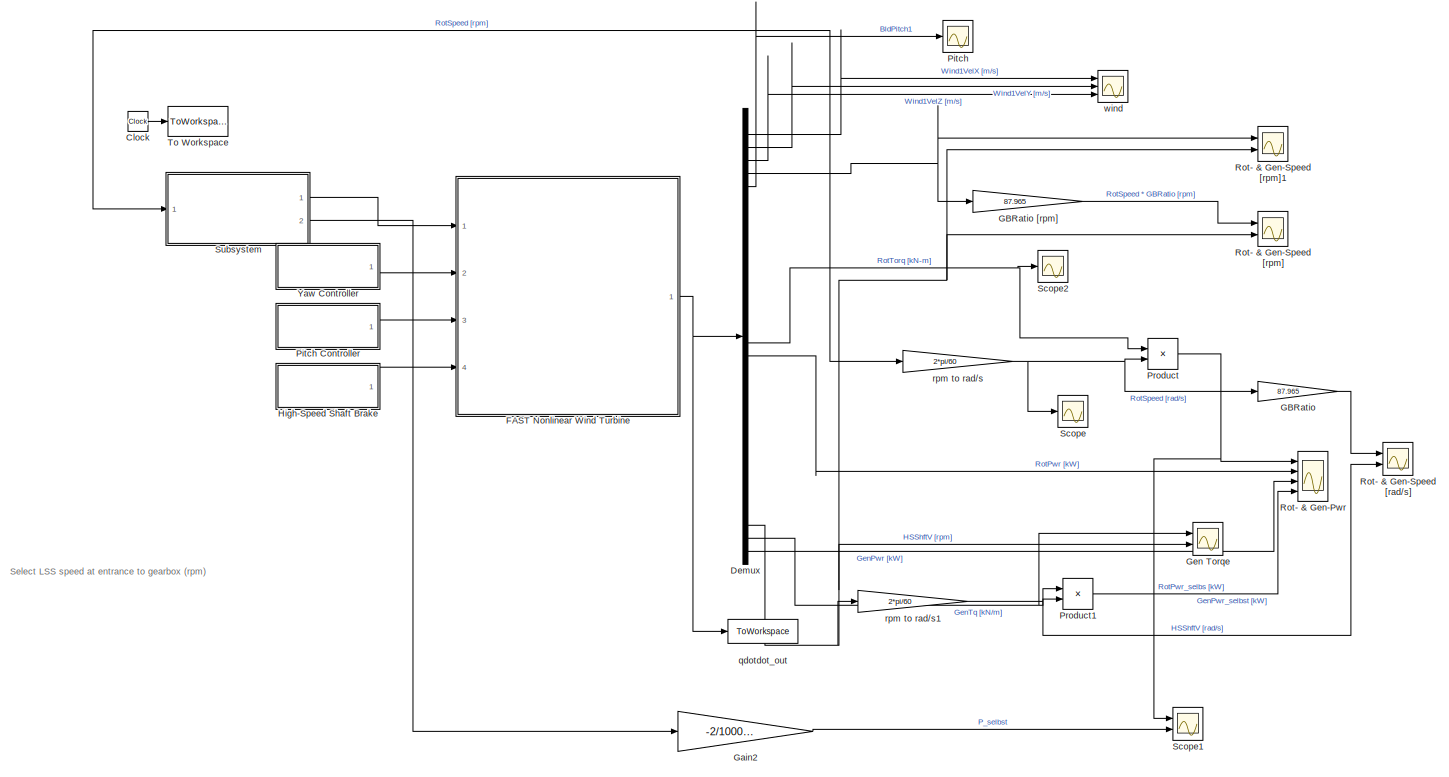
[diagram: root canvas - part 1/1, most of the canvas]
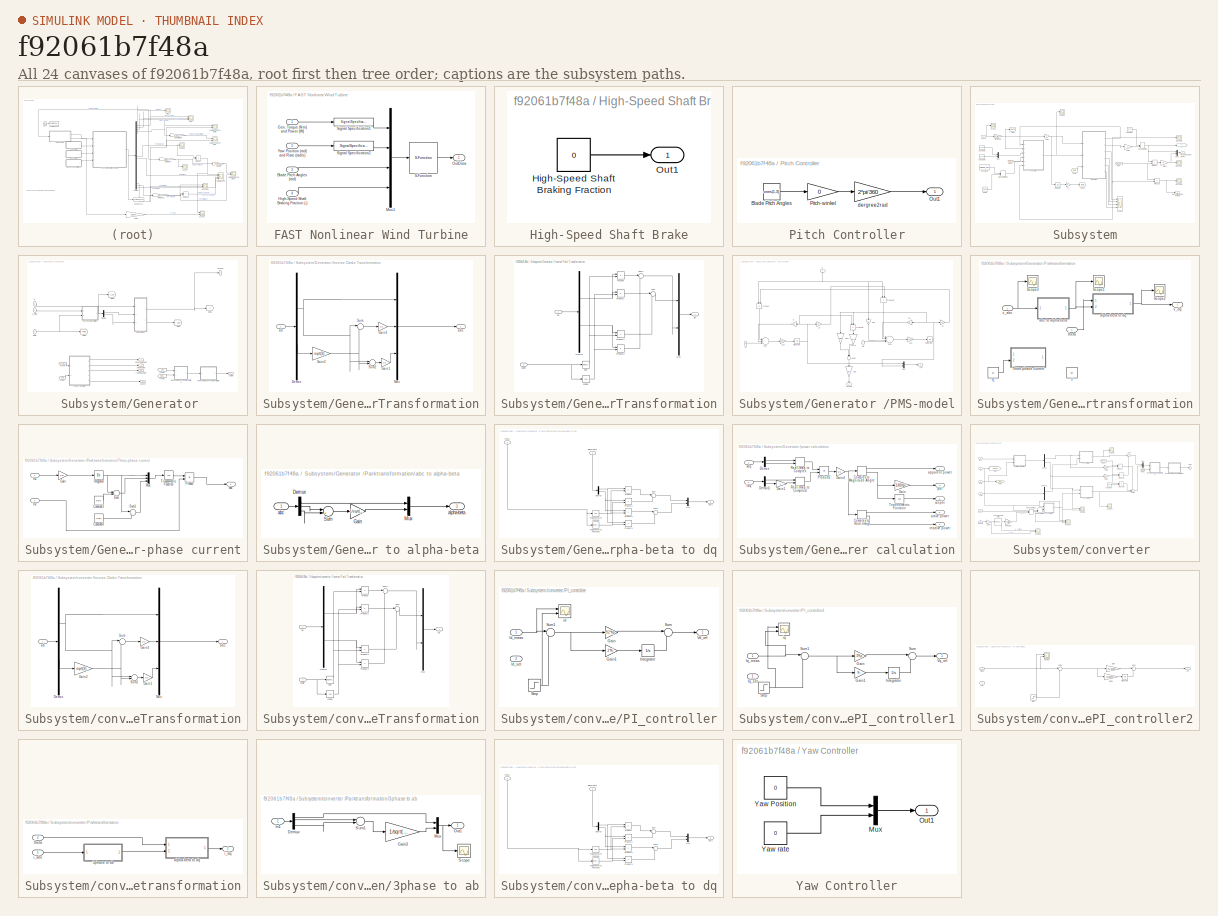
[diagram: thumbnail index - all 24 canvases of the model, root first then tree order]
MODEL slx_f92061b7f48a
KIND model
CONFIG AbsTol = auto
CONFIG FixedStep = 0.001
CONFIG MaxStep = auto
CONFIG MinStep = auto
CONFIG RelTol = 1e-2
CONFIG SampleTimeConstraint = Unconstrained
CONFIG Solver = ode4
CONFIG SolverMode = SingleTasking
CONFIG SolverName = ode4
CONFIG StartTime = 0.0
CONFIG StopTime = 2
BLOCK [Clock] Clock
BLOCK [Demux] Demux
  DisplayOption = bar
  Outputs = 34
  Ports = [1, 34]
BLOCK [SubSystem] FAST Nonlinear Wind Turbine
  Ports = [4, 1]
  RequestExecContextInheritance = off
  Variant = off
BLOCK [Inport] FAST Nonlinear Wind Turbine/Blade Pitch Angles (rad)
  IconDisplay = Port number
  Port = 3
BLOCK [Inport] FAST Nonlinear Wind Turbine/Gen. Torque (Nm) and Power (W)
  IconDisplay = Port number
BLOCK [Inport] FAST Nonlinear Wind Turbine/High-Speed Shaft Braking Fraction (-)
  IconDisplay = Port number
  Port = 4
BLOCK [Mux] FAST Nonlinear Wind Turbine/Mux1
  DisplayOption = bar
  Ports = [4, 1]
BLOCK [Outport] FAST Nonlinear Wind Turbine/OutData
  IconDisplay = Port number
BLOCK [S-Function] FAST Nonlinear Wind Turbine/S-Function
  EnableBusSupport = off
  FunctionName = FAST_SFunc
  Parameters = FAST_InputFileName, TMax, 0
  Ports = [1, 1]
  SFunctionDeploymentMode = off
BLOCK [SignalSpecification] FAST Nonlinear Wind Turbine/Signal Specification1
  Dimensions = 2
  OutDataTypeStr = double
  SignalType = real
BLOCK [SignalSpecification] FAST Nonlinear Wind Turbine/Signal Specification2
  Dimensions = 2
  OutDataTypeStr = double
  SignalType = real
BLOCK [Inport] FAST Nonlinear Wind Turbine/Yaw Position (rad) and Rate (rad//s)
  IconDisplay = Port number
  Port = 2
BLOCK [Gain] GBRatio
  Gain = 87.965
  OutDataTypeStr = Inherit: Inherit via internal rule
  ParamDataTypeStr = Inherit: Inherit via internal rule
  SaturateOnIntegerOverflow = off
BLOCK [Gain] GBRatio [rpm]
  Gain = 87.965
  OutDataTypeStr = Inherit: Inherit via internal rule
  ParamDataTypeStr = Inherit: Inherit via internal rule
  SaturateOnIntegerOverflow = off
BLOCK [Gain] Gain2
  Gain = -2/100000
  OutDataTypeStr = Inherit: Inherit via internal rule
  ParamDataTypeStr = Inherit: Inherit via internal rule
  SaturateOnIntegerOverflow = off
BLOCK [Scope] Gen Torqe
  NumInputPorts = 2
  Ports = [2]
  ScopeSpecificationString = Simulink.scopes.TimeScopeBlockCfg('CurrentConfiguration', extmgr.ConfigurationSet(extmgr.Configuration('Core','General UI',true),extmgr.Configuration('Core','Source UI',true),extmgr.Configuration('Sources','WiredSimulink',true,'DataLoggingVariableName','ScopeData1'),extmgr.Configuration('Visuals','Time Domain',true,'SerializedDisplays',{struct('MinYLimReal','175.29635','MaxYLimReal','1290.81856','...<+2465ch>
BLOCK [SubSystem] High-Speed Shaft Brake
  Ports = [0, 1]
  RequestExecContextInheritance = off
  Variant = off
BLOCK [Constant] High-Speed Shaft Brake/High-Speed Shaft Braking Fraction
  Value = 0
BLOCK [Outport] High-Speed Shaft Brake/Out1
  IconDisplay = Port number
BLOCK [Scope] Pitch
  Ports = [1]
  ScopeSpecificationString = Simulink.scopes.TimeScopeBlockCfg('CurrentConfiguration', extmgr.ConfigurationSet(extmgr.Configuration('Core','General UI',true),extmgr.Configuration('Core','Source UI',true),extmgr.Configuration('Sources','WiredSimulink',true,'DataLoggingVariableName','ScopeData2'),extmgr.Configuration('Visuals','Time Domain',true,'SerializedDisplays',{struct('MinYLimReal','-0.06791','MaxYLimReal','11.59004','YLa...<+1752ch>
BLOCK [SubSystem] Pitch Controller
  Ports = [0, 1]
  RequestExecContextInheritance = off
  Variant = off
BLOCK [Constant] Pitch Controller/Blade Pitch Angles
  Value = ones(1,3)'
BLOCK [Outport] Pitch Controller/Out1
  IconDisplay = Port number
BLOCK [Gain] Pitch Controller/Pitch-winkel
  Gain = 0
  OutDataTypeStr = Inherit: Inherit via internal rule
  ParamDataTypeStr = Inherit: Inherit via internal rule
  SaturateOnIntegerOverflow = off
BLOCK [Gain] Pitch Controller/dergree2rad
  Gain = 2*pi/360
  OutDataTypeStr = Inherit: Inherit via internal rule
  ParamDataTypeStr = Inherit: Inherit via internal rule
  SaturateOnIntegerOverflow = off
BLOCK [Product] Product
  InputSameDT = off
  OutDataTypeStr = Inherit: Inherit via internal rule
  Ports = [2, 1]
  RndMeth = Floor
  SaturateOnIntegerOverflow = off
BLOCK [Product] Product1
  InputSameDT = off
  OutDataTypeStr = Inherit: Inherit via internal rule
  Ports = [2, 1]
  RndMeth = Floor
  SaturateOnIntegerOverflow = off
BLOCK [Scope] Rot- & Gen-Pwr
  NumInputPorts = 4
  Ports = [4]
  ScopeSpecificationString = Simulink.scopes.TimeScopeBlockCfg('CurrentConfiguration', extmgr.ConfigurationSet(extmgr.Configuration('Core','General UI',true),extmgr.Configuration('Core','Source UI',true),extmgr.Configuration('Sources','WiredSimulink',true,'DataLoggingVariableName','ScopeData1'),extmgr.Configuration('Visuals','Time Domain',true,'SerializedDisplays',{struct('MinYLimReal','-11998.78751','MaxYLimReal','12263.4527...<+1913ch>
BLOCK [Scope] Rot- & Gen-Speed [rad//s]
  NumInputPorts = 2
  Ports = [2]
  ScopeSpecificationString = Simulink.scopes.TimeScopeBlockCfg('CurrentConfiguration', extmgr.ConfigurationSet(extmgr.Configuration('Core','General UI',true),extmgr.Configuration('Core','Source UI',true),extmgr.Configuration('Sources','WiredSimulink',true,'DataLoggingVariableName','ScopeData1'),extmgr.Configuration('Visuals','Time Domain',true,'SerializedDisplays',{struct('MinYLimReal','176.71018','MaxYLimReal','211.07262','Y...<+1472ch>
BLOCK [Scope] Rot- & Gen-Speed [rpm]
  NumInputPorts = 2
  Ports = [2]
  ScopeSpecificationString = Simulink.scopes.TimeScopeBlockCfg('CurrentConfiguration', extmgr.ConfigurationSet(extmgr.Configuration('Core','General UI',true),extmgr.Configuration('Core','Source UI',true),extmgr.Configuration('Sources','WiredSimulink',true,'DataLoggingVariableName','ScopeData1'),extmgr.Configuration('Visuals','Time Domain',true,'SerializedDisplays',{struct('MinYLimReal','1687.45789','MaxYLimReal','2015.59509',...<+1545ch>
BLOCK [Scope] Rot- & Gen-Speed [rpm]1
  NumInputPorts = 2
  Ports = [2]
  ScopeSpecificationString = Simulink.scopes.TimeScopeBlockCfg('CurrentConfiguration', extmgr.ConfigurationSet(extmgr.Configuration('Core','General UI',true),extmgr.Configuration('Core','Source UI',true),extmgr.Configuration('Sources','WiredSimulink',true,'DataLoggingVariableName','ScopeData3'),extmgr.Configuration('Visuals','Time Domain',true,'SerializedDisplays',{struct('MinYLimReal','-204.38964','MaxYLimReal','2034.73429',...<+1854ch>
BLOCK [Scope] Scope
  Ports = [1]
  ScopeSpecificationString = Simulink.scopes.TimeScopeBlockCfg('CurrentConfiguration', extmgr.ConfigurationSet(extmgr.Configuration('Core','General UI',true),extmgr.Configuration('Core','Source UI',true),extmgr.Configuration('Sources','WiredSimulink',true,'DataLoggingVariableName','ScopeData1'),extmgr.Configuration('Visuals','Time Domain',true,'SerializedDisplays',{struct('MinYLimReal','2.02033','MaxYLimReal','2.39822','YLabe...<+1729ch>
BLOCK [Scope] Scope1
  NumInputPorts = 2
  Ports = [2]
  ScopeSpecificationString = Simulink.scopes.TimeScopeBlockCfg('CurrentConfiguration', extmgr.ConfigurationSet(extmgr.Configuration('Core','General UI',true),extmgr.Configuration('Core','Source UI',true),extmgr.Configuration('Sources','WiredSimulink',true,'DataLoggingVariableName','ScopeData5'),extmgr.Configuration('Visuals','Time Domain',true,'SerializedDisplays',{struct('MinYLimReal','-337.22726','MaxYLimReal','3035.04531',...<+1790ch>
BLOCK [Scope] Scope2
  Ports = [1]
  ScopeSpecificationString = Simulink.scopes.TimeScopeBlockCfg('CurrentConfiguration', extmgr.ConfigurationSet(extmgr.Configuration('Core','General UI',true),extmgr.Configuration('Core','Source UI',true),extmgr.Configuration('Sources','WiredSimulink',true,'DataLoggingVariableName','ScopeData2'),extmgr.Configuration('Visuals','Time Domain',true,'SerializedDisplays',{struct('MinYLimReal','-412498.87918','MaxYLimReal','45986.162...<+1784ch>
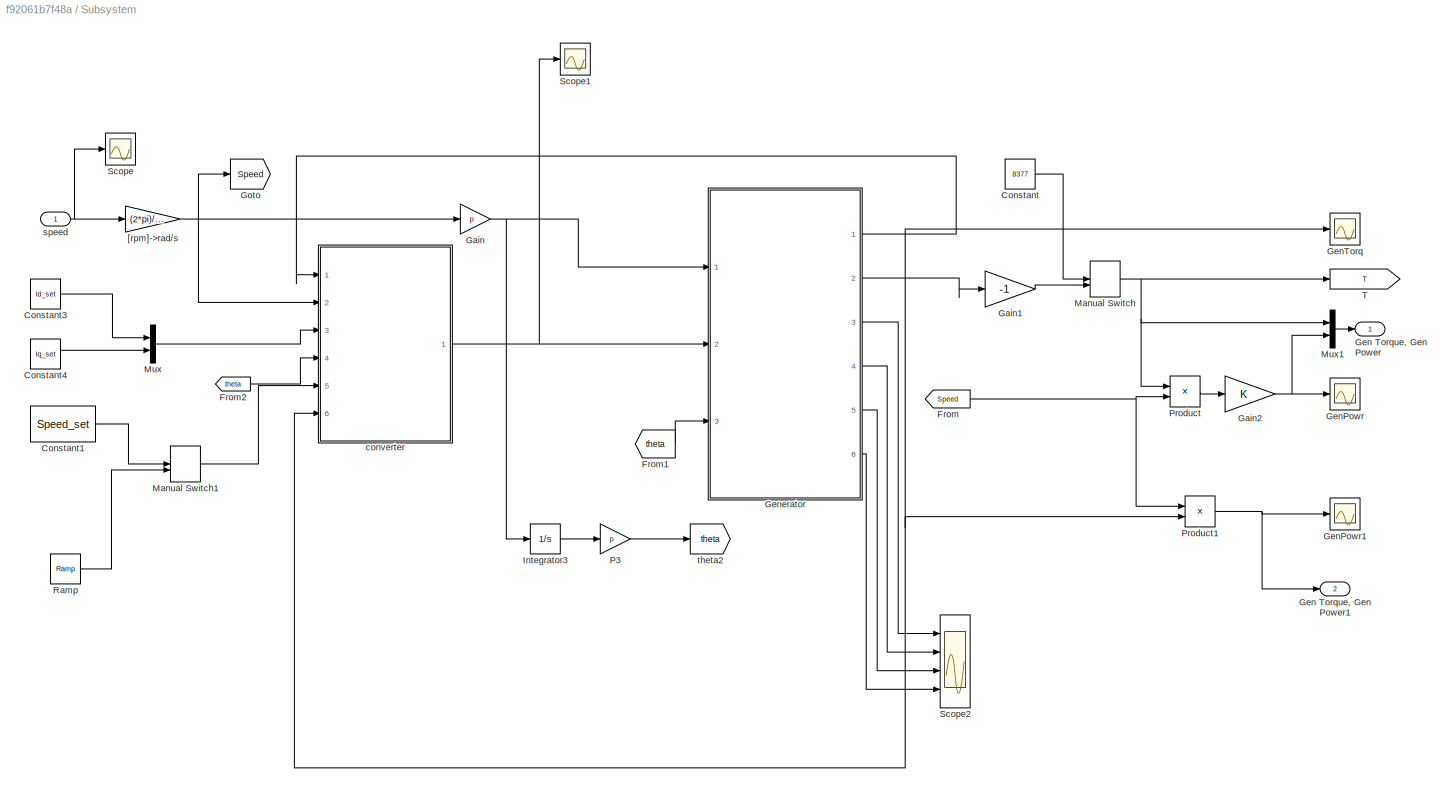
BLOCK [SubSystem] Subsystem
  Ports = [1, 2]
  RequestExecContextInheritance = off
  Variant = off
BLOCK [Constant] Subsystem/Constant
  Value = 8377
  VectorParams1D = off
BLOCK [Constant] Subsystem/Constant1
  Value = Speed_set
BLOCK [Constant] Subsystem/Constant3
  Value = Id_set
BLOCK [Constant] Subsystem/Constant4
  Value = Iq_set
BLOCK [From] Subsystem/From
  GotoTag = Speed
BLOCK [From] Subsystem/From1
  GotoTag = theta
BLOCK [From] Subsystem/From2
  GotoTag = theta
BLOCK [Gain] Subsystem/Gain
  Gain = p
  OutDataTypeStr = Inherit: Inherit via internal rule
  ParamDataTypeStr = Inherit: Inherit via internal rule
  SaturateOnIntegerOverflow = off
BLOCK [Gain] Subsystem/Gain1
  Gain = -1
  OutDataTypeStr = Inherit: Inherit via internal rule
  ParamDataTypeStr = Inherit: Inherit via internal rule
  SaturateOnIntegerOverflow = off
BLOCK [Gain] Subsystem/Gain2
  OutDataTypeStr = Inherit: Inherit via internal rule
  ParamDataTypeStr = Inherit: Inherit via internal rule
  SaturateOnIntegerOverflow = off
BLOCK [Outport] Subsystem/Gen Torque, Gen Power
  IconDisplay = Port number
BLOCK [Outport] Subsystem/Gen Torque, Gen Power1
  IconDisplay = Port number
  Port = 2
BLOCK [Scope] Subsystem/GenPowr
  Ports = [1]
  ScopeSpecificationString = Simulink.scopes.TimeScopeBlockCfg('CurrentConfiguration', extmgr.ConfigurationSet(extmgr.Configuration('Core','General UI',true),extmgr.Configuration('Core','Source UI',true),extmgr.Configuration('Sources','WiredSimulink',true,'DataLoggingVariableName','ScopeData1'),extmgr.Configuration('Visuals','Time Domain',true,'SerializedDisplays',{struct('MinYLimReal','1699746.92035','MaxYLimReal','1950506.4...<+1795ch>
BLOCK [Scope] Subsystem/GenPowr1
  Ports = [1]
  ScopeSpecificationString = Simulink.scopes.TimeScopeBlockCfg('CurrentConfiguration', extmgr.ConfigurationSet(extmgr.Configuration('Core','General UI',true),extmgr.Configuration('Core','Source UI',true),extmgr.Configuration('Sources','WiredSimulink',true,'DataLoggingVariableName','ScopeData4'),extmgr.Configuration('Visuals','Time Domain',true,'SerializedDisplays',{struct('MinYLimReal','-17221.29065','MaxYLimReal','2142.33384...<+1749ch>
BLOCK [Scope] Subsystem/GenTorq
  Ports = [1]
  ScopeSpecificationString = Simulink.scopes.TimeScopeBlockCfg('CurrentConfiguration', extmgr.ConfigurationSet(extmgr.Configuration('Core','General UI',true),extmgr.Configuration('Core','Source UI',true),extmgr.Configuration('Sources','WiredSimulink',true,'DataLoggingVariableName','ScopeData2','DataLoggingSaveFormat','Array','DataLoggingDecimation','1'),extmgr.Configuration('Visuals','Time Domain',true,'SerializedDisplays',{s...<+1847ch>
BLOCK [SubSystem] Subsystem/Generator 
  Ports = [3, 6]
  RequestExecContextInheritance = off
  Variant = off
BLOCK [Demux] Subsystem/Generator /Demux
  DisplayOption = bar
  Outputs = 2
  Ports = [1, 2]
BLOCK [From] Subsystem/Generator /From1
  GotoTag = I_dq
BLOCK [From] Subsystem/Generator /From2
  GotoTag = theta
BLOCK [From] Subsystem/Generator /From6
  GotoTag = V_dq
BLOCK [From] Subsystem/Generator /From7
  GotoTag = I_dq
BLOCK [Goto] Subsystem/Generator /Goto
  GotoTag = I_dq
BLOCK [Goto] Subsystem/Generator /Goto1
  GotoTag = T
BLOCK [Goto] Subsystem/Generator /Goto2
  GotoTag = V_dq
BLOCK [Goto] Subsystem/Generator /Goto3
  GotoTag = theta
BLOCK [Outport] Subsystem/Generator /I_stator 
  IconDisplay = Port number
BLOCK [SubSystem] Subsystem/Generator /Inverse Clarke Transformation
  Ports = [1, 1]
  RequestExecContextInheritance = off
  Variant = off
BLOCK [Demux] Subsystem/Generator /Inverse Clarke Transformation/Demux
  DisplayOption = bar
  Outputs = 2
  Ports = [1, 2]
BLOCK [Gain] Subsystem/Generator /Inverse Clarke Transformation/Gain1
  Gain = 1/2
  OutDataTypeStr = Inherit: Inherit via internal rule
  ParamDataTypeStr = Inherit: Inherit via internal rule
  SaturateOnIntegerOverflow = off
BLOCK [Gain] Subsystem/Generator /Inverse Clarke Transformation/Gain2
  Gain = sqrt(3)
  OutDataTypeStr = Inherit: Inherit via internal rule
  ParamDataTypeStr = Inherit: Inherit via internal rule
  SaturateOnIntegerOverflow = off
BLOCK [Gain] Subsystem/Generator /Inverse Clarke Transformation/Gain4
  Gain = 1/2
  OutDataTypeStr = Inherit: Inherit via internal rule
  ParamDataTypeStr = Inherit: Inherit via internal rule
  SaturateOnIntegerOverflow = off
BLOCK [Mux] Subsystem/Generator /Inverse Clarke Transformation/Mux
  DisplayOption = bar
  Inputs = 3
  Ports = [3, 1]
BLOCK [Sum] Subsystem/Generator /Inverse Clarke Transformation/Sum
  IconShape = round
  InputSameDT = off
  Inputs = |-+
  OutDataTypeStr = Inherit: Inherit via internal rule
  Ports = [2, 1]
  SaturateOnIntegerOverflow = off
BLOCK [Sum] Subsystem/Generator /Inverse Clarke Transformation/Sum1
  IconShape = round
  InputSameDT = off
  Inputs = |--
  OutDataTypeStr = Inherit: Inherit via internal rule
  Ports = [2, 1]
  SaturateOnIntegerOverflow = off
BLOCK [Inport] Subsystem/Generator /Inverse Clarke Transformation/ab
  IconDisplay = Port number
BLOCK [Outport] Subsystem/Generator /Inverse Clarke Transformation/abc
  IconDisplay = Port number
BLOCK [SubSystem] Subsystem/Generator /Inverse Park Transformation
  Ports = [2, 1]
  RequestExecContextInheritance = off
  Variant = off
BLOCK [Demux] Subsystem/Generator /Inverse Park Transformation/Demux
  DisplayOption = bar
  Outputs = 2
  Ports = [1, 2]
BLOCK [Mux] Subsystem/Generator /Inverse Park Transformation/Mux
  DisplayOption = bar
  Inputs = 2
  Ports = [2, 1]
BLOCK [Product] Subsystem/Generator /Inverse Park Transformation/Product
  InputSameDT = off
  OutDataTypeStr = Inherit: Inherit via internal rule
  Ports = [2, 1]
  SaturateOnIntegerOverflow = off
BLOCK [Product] Subsystem/Generator /Inverse Park Transformation/Product1
  InputSameDT = off
  OutDataTypeStr = Inherit: Inherit via internal rule
  Ports = [2, 1]
  SaturateOnIntegerOverflow = off
BLOCK [Product] Subsystem/Generator /Inverse Park Transformation/Product2
  InputSameDT = off
  OutDataTypeStr = Inherit: Inherit via internal rule
  Ports = [2, 1]
  SaturateOnIntegerOverflow = off
BLOCK [Product] Subsystem/Generator /Inverse Park Transformation/Product3
  InputSameDT = off
  OutDataTypeStr = Inherit: Inherit via internal rule
  Ports = [2, 1]
  SaturateOnIntegerOverflow = off
BLOCK [Sum] Subsystem/Generator /Inverse Park Transformation/Sum
  IconShape = round
  InputSameDT = off
  Inputs = |+-
  OutDataTypeStr = Inherit: Inherit via internal rule
  Ports = [2, 1]
  SaturateOnIntegerOverflow = off
BLOCK [Sum] Subsystem/Generator /Inverse Park Transformation/Sum1
  IconShape = round
  InputSameDT = off
  Inputs = |++
  OutDataTypeStr = Inherit: Inherit via internal rule
  Ports = [2, 1]
  SaturateOnIntegerOverflow = off
BLOCK [Outport] Subsystem/Generator /Inverse Park Transformation/ab
  IconDisplay = Port number
BLOCK [Inport] Subsystem/Generator /Inverse Park Transformation/angle
  IconDisplay = Port number
  Port = 2
BLOCK [Trigonometry] Subsystem/Generator /Inverse Park Transformation/cosine
  Operator = cos
  Ports = [1, 1]
BLOCK [Inport] Subsystem/Generator /Inverse Park Transformation/dq
  IconDisplay = Port number
BLOCK [Trigonometry] Subsystem/Generator /Inverse Park Transformation/sine
  Ports = [1, 1]
BLOCK [SubSystem] Subsystem/Generator /PMS-model
  Ports = [3, 2]
  RequestExecContextInheritance = off
  Variant = off
BLOCK [Gain] Subsystem/Generator /PMS-model/1//Ld
  Gain = 1/Ld
  OutDataTypeStr = Inherit: Inherit via internal rule
  ParamDataTypeStr = Inherit: Inherit via internal rule
  SaturateOnIntegerOverflow = off
BLOCK [Gain] Subsystem/Generator /PMS-model/1//Lq
  Gain = 1/Lq
  OutDataTypeStr = Inherit: Inherit via internal rule
  ParamDataTypeStr = Inherit: Inherit via internal rule
  SaturateOnIntegerOverflow = off
BLOCK [Gain] Subsystem/Generator /PMS-model/3//2 p
  Gain = 3/2*p
  OutDataTypeStr = Inherit: Inherit via internal rule
  ParamDataTypeStr = Inherit: Inherit via internal rule
  SaturateOnIntegerOverflow = off
BLOCK [Gain] Subsystem/Generator /PMS-model/Flux 
  Gain = Flux
  OutDataTypeStr = Inherit: Inherit via internal rule
  ParamDataTypeStr = Inherit: Inherit via internal rule
  SaturateOnIntegerOverflow = off
BLOCK [Gain] Subsystem/Generator /PMS-model/Flux 1
  Gain = Flux
  OutDataTypeStr = Inherit: Inherit via internal rule
  ParamDataTypeStr = Inherit: Inherit via internal rule
  SaturateOnIntegerOverflow = off
BLOCK [Outport] Subsystem/Generator /PMS-model/I_dq
  IconDisplay = Port number
  Port = 2
BLOCK [Integrator] Subsystem/Generator /PMS-model/Integrator
  Ports = [1, 1]
BLOCK [Integrator] Subsystem/Generator /PMS-model/Integrator1
  IgnoreLimit = on
  Ports = [1, 1]
BLOCK [Gain] Subsystem/Generator /PMS-model/Ld
  Gain = Ld
  OutDataTypeStr = Inherit: Inherit via internal rule
  ParamDataTypeStr = Inherit: Inherit via internal rule
  SaturateOnIntegerOverflow = off
BLOCK [Gain] Subsystem/Generator /PMS-model/Ld-Lq
  Gain = Ld-Lq
  OutDataTypeStr = Inherit: Inherit via internal rule
  ParamDataTypeStr = Inherit: Inherit via internal rule
  SaturateOnIntegerOverflow = off
BLOCK [Gain] Subsystem/Generator /PMS-model/Lq
  Gain = Lq
  OutDataTypeStr = Inherit: Inherit via internal rule
  ParamDataTypeStr = Inherit: Inherit via internal rule
  SaturateOnIntegerOverflow = off
BLOCK [Mux] Subsystem/Generator /PMS-model/Mux
  DisplayOption = bar
  Inputs = 2
  Ports = [2, 1]
BLOCK [Product] Subsystem/Generator /PMS-model/Product
  InputSameDT = off
  OutDataTypeStr = Inherit: Inherit via internal rule
  Ports = [2, 1]
  RndMeth = Floor
  SaturateOnIntegerOverflow = off
BLOCK [Product] Subsystem/Generator /PMS-model/Product1
  InputSameDT = off
  OutDataTypeStr = Inherit: Inherit via internal rule
  Ports = [2, 1]
  RndMeth = Floor
  SaturateOnIntegerOverflow = off
BLOCK [Product] Subsystem/Generator /PMS-model/Product2
  InputSameDT = off
  OutDataTypeStr = Inherit: Inherit via internal rule
  Ports = [2, 1]
  RndMeth = Floor
  SaturateOnIntegerOverflow = off
BLOCK [Gain] Subsystem/Generator /PMS-model/R
  Gain = Rs
  OutDataTypeStr = Inherit: Inherit via internal rule
  ParamDataTypeStr = Inherit: Inherit via internal rule
  SaturateOnIntegerOverflow = off
BLOCK [Gain] Subsystem/Generator /PMS-model/R1
  Gain = Rs
  OutDataTypeStr = Inherit: Inherit via internal rule
  ParamDataTypeStr = Inherit: Inherit via internal rule
  SaturateOnIntegerOverflow = off
BLOCK [Sum] Subsystem/Generator /PMS-model/Sum
  InputSameDT = off
  Inputs = |+-+
  OutDataTypeStr = Inherit: Inherit via internal rule
  Ports = [3, 1]
  SaturateOnIntegerOverflow = off
BLOCK [Sum] Subsystem/Generator /PMS-model/Sum1
  InputSameDT = off
  Inputs = |---+
  OutDataTypeStr = Inherit: Inherit via internal rule
  Ports = [4, 1]
  SaturateOnIntegerOverflow = off
BLOCK [Sum] Subsystem/Generator /PMS-model/Sum3
  IconShape = round
  InputSameDT = off
  Inputs = |++
  OutDataTypeStr = Inherit: Inherit via internal rule
  Ports = [2, 1]
  SaturateOnIntegerOverflow = off
BLOCK [Outport] Subsystem/Generator /PMS-model/Torque
  IconDisplay = Port number
BLOCK [Inport] Subsystem/Generator /PMS-model/Vd
  IconDisplay = Port number
  Port = 2
BLOCK [Inport] Subsystem/Generator /PMS-model/Vq
  IconDisplay = Port number
  Port = 3
BLOCK [Inport] Subsystem/Generator /PMS-model/w
  IconDisplay = Port number
BLOCK [SubSystem] Subsystem/Generator /Parktransformation
  Ports = [2, 1]
  RequestExecContextInheritance = off
  Variant = off
BLOCK [Scope] Subsystem/Generator /Parktransformation/Scope1
  Ports = [1]
  ScopeSpecificationString = Simulink.scopes.TimeScopeBlockCfg('CurrentConfiguration', extmgr.ConfigurationSet(extmgr.Configuration('Core','General UI',true),extmgr.Configuration('Core','Source UI',true),extmgr.Configuration('Sources','WiredSimulink',true,'DataLoggingSaveFormat','Array','DataLoggingDecimation','1','DataLoggingDecimateData',true),extmgr.Configuration('Visuals','Time Domain',true,'SerializedDisplays',{struct('M...<+1724ch>
BLOCK [Scope] Subsystem/Generator /Parktransformation/Scope2
  Ports = [1]
  ScopeSpecificationString = Simulink.scopes.TimeScopeBlockCfg('CurrentConfiguration', extmgr.ConfigurationSet(extmgr.Configuration('Core','General UI',true),extmgr.Configuration('Core','Source UI',true),extmgr.Configuration('Sources','WiredSimulink',true,'DataLoggingSaveFormat','Array','DataLoggingDecimation','1','DataLoggingDecimateData',true,'DataLoggingVariableName','ScopeData2'),extmgr.Configuration('Visuals','Time Domai...<+1761ch>
BLOCK [Scope] Subsystem/Generator /Parktransformation/Scope3
  Ports = [1]
  ScopeSpecificationString = Simulink.scopes.TimeScopeBlockCfg('CurrentConfiguration', extmgr.ConfigurationSet(extmgr.Configuration('Core','General UI',true),extmgr.Configuration('Core','Source UI',true),extmgr.Configuration('Sources','WiredSimulink',true,'DataLoggingSaveFormat','Array','DataLoggingDecimation','1','DataLoggingDecimateData',true,'DataLoggingVariableName','ScopeData1'),extmgr.Configuration('Visuals','Time Domai...<+1753ch>
BLOCK [SubSystem] Subsystem/Generator /Parktransformation/Three-phase current
  Ports = [2, 1]
  RequestExecContextInheritance = off
  Variant = off
BLOCK [Constant] Subsystem/Generator /Parktransformation/Three-phase current/Constant3
  Value = 2*pi/3
BLOCK [Constant] Subsystem/Generator /Parktransformation/Three-phase current/Constant4
  Value = -2*pi/3
BLOCK [Gain] Subsystem/Generator /Parktransformation/Three-phase current/Gain
  Gain = 2*pi
  OutDataTypeStr = Inherit: Inherit via internal rule
  ParamDataTypeStr = Inherit: Inherit via internal rule
  SaturateOnIntegerOverflow = off
BLOCK [Inport] Subsystem/Generator /Parktransformation/Three-phase current/In1
  IconDisplay = Port number
BLOCK [Inport] Subsystem/Generator /Parktransformation/Three-phase current/In2
  IconDisplay = Port number
  Port = 2
BLOCK [Integrator] Subsystem/Generator /Parktransformation/Three-phase current/Integrator
  Ports = [1, 1]
BLOCK [Mux] Subsystem/Generator /Parktransformation/Three-phase current/Mux
  DisplayOption = bar
  Inputs = 3
  Ports = [3, 1]
BLOCK [Product] Subsystem/Generator /Parktransformation/Three-phase current/Product
  InputSameDT = off
  OutDataTypeStr = Inherit: Inherit via internal rule
  Ports = [2, 1]
  RndMeth = Floor
  SaturateOnIntegerOverflow = off
BLOCK [Sum] Subsystem/Generator /Parktransformation/Three-phase current/Sum
  IconShape = round
  InputSameDT = off
  Inputs = |++
  OutDataTypeStr = Inherit: Inherit via internal rule
  Ports = [2, 1]
  SaturateOnIntegerOverflow = off
BLOCK [Sum] Subsystem/Generator /Parktransformation/Three-phase current/Sum1
  IconShape = round
  InputSameDT = off
  Inputs = |++
  OutDataTypeStr = Inherit: Inherit via internal rule
  Ports = [2, 1]
  SaturateOnIntegerOverflow = off
BLOCK [Trigonometry] Subsystem/Generator /Parktransformation/Three-phase current/Trigonometric Function
  Operator = cos
  Ports = [1, 1]
BLOCK [Outport] Subsystem/Generator /Parktransformation/Three-phase current/abc 
  IconDisplay = Port number
BLOCK [SubSystem] Subsystem/Generator /Parktransformation/abc to alpha-beta
  Ports = [1, 1]
  RequestExecContextInheritance = off
  Variant = off
BLOCK [Demux] Subsystem/Generator /Parktransformation/abc to alpha-beta/Demux
  DisplayOption = bar
  Outputs = 3
  Ports = [1, 3]
BLOCK [Gain] Subsystem/Generator /Parktransformation/abc to alpha-beta/Gain
  Gain = 1/sqrt(3)
  OutDataTypeStr = Inherit: Inherit via internal rule
  ParamDataTypeStr = Inherit: Inherit via internal rule
  SaturateOnIntegerOverflow = off
BLOCK [Mux] Subsystem/Generator /Parktransformation/abc to alpha-beta/Mux
  DisplayOption = bar
  Inputs = 2
  Ports = [2, 1]
BLOCK [Sum] Subsystem/Generator /Parktransformation/abc to alpha-beta/Sum
  IconShape = round
  InputSameDT = off
  Inputs = |+-
  OutDataTypeStr = Inherit: Inherit via internal rule
  Ports = [2, 1]
  SaturateOnIntegerOverflow = off
BLOCK [Inport] Subsystem/Generator /Parktransformation/abc to alpha-beta/abc
  IconDisplay = Port number
BLOCK [Outport] Subsystem/Generator /Parktransformation/abc to alpha-beta/alpha-beta 
  IconDisplay = Port number
BLOCK [SubSystem] Subsystem/Generator /Parktransformation/alpha-beta to dq
  Ports = [2, 1]
  RequestExecContextInheritance = off
  Variant = off
BLOCK [Demux] Subsystem/Generator /Parktransformation/alpha-beta to dq/Demux
  DisplayOption = bar
  Outputs = 2
  Ports = [1, 2]
BLOCK [Mux] Subsystem/Generator /Parktransformation/alpha-beta to dq/Mux
  DisplayOption = bar
  Inputs = 2
  Ports = [2, 1]
BLOCK [Outport] Subsystem/Generator /Parktransformation/alpha-beta to dq/Out1
  IconDisplay = Port number
BLOCK [Product] Subsystem/Generator /Parktransformation/alpha-beta to dq/Product
  InputSameDT = off
  OutDataTypeStr = Inherit: Inherit via internal rule
  Ports = [2, 1]
  RndMeth = Floor
  SaturateOnIntegerOverflow = off
BLOCK [Product] Subsystem/Generator /Parktransformation/alpha-beta to dq/Product1
  InputSameDT = off
  OutDataTypeStr = Inherit: Inherit via internal rule
  Ports = [2, 1]
  RndMeth = Floor
  SaturateOnIntegerOverflow = off
BLOCK [Product] Subsystem/Generator /Parktransformation/alpha-beta to dq/Product2
  InputSameDT = off
  OutDataTypeStr = Inherit: Inherit via internal rule
  Ports = [2, 1]
  RndMeth = Floor
  SaturateOnIntegerOverflow = off
BLOCK [Product] Subsystem/Generator /Parktransformation/alpha-beta to dq/Product3
  InputSameDT = off
  OutDataTypeStr = Inherit: Inherit via internal rule
  Ports = [2, 1]
  RndMeth = Floor
  SaturateOnIntegerOverflow = off
BLOCK [Sum] Subsystem/Generator /Parktransformation/alpha-beta to dq/Sum
  IconShape = round
  InputSameDT = off
  Inputs = |++
  OutDataTypeStr = Inherit: Inherit via internal rule
  Ports = [2, 1]
  SaturateOnIntegerOverflow = off
BLOCK [Sum] Subsystem/Generator /Parktransformation/alpha-beta to dq/Sum1
  IconShape = round
  InputSameDT = off
  Inputs = |+-
  OutDataTypeStr = Inherit: Inherit via internal rule
  Ports = [2, 1]
  SaturateOnIntegerOverflow = off
BLOCK [Trigonometry] Subsystem/Generator /Parktransformation/alpha-beta to dq/Trigonometric Function
  Operator = cos
  Ports = [1, 1]
BLOCK [Trigonometry] Subsystem/Generator /Parktransformation/alpha-beta to dq/Trigonometric Function1
  Ports = [1, 1]
BLOCK [Inport] Subsystem/Generator /Parktransformation/alpha-beta to dq/alpha-beta 
  IconDisplay = Port number
  Port = 2
BLOCK [Inport] Subsystem/Generator /Parktransformation/alpha-beta to dq/theta
  IconDisplay = Port number
BLOCK [Constant] Subsystem/Generator /Parktransformation/f
  Value = 50
BLOCK [Constant] Subsystem/Generator /Parktransformation/f1
  Value = 20
BLOCK [Inport] Subsystem/Generator /Parktransformation/theta
  IconDisplay = Port number
  Port = 2
BLOCK [Inport] Subsystem/Generator /Parktransformation/v_abc
  IconDisplay = Port number
BLOCK [Outport] Subsystem/Generator /Parktransformation/v_dq
  IconDisplay = Port number
BLOCK [Outport] Subsystem/Generator /Torque
  IconDisplay = Port number
  Port = 2
BLOCK [Inport] Subsystem/Generator /V_stator 
  IconDisplay = Port number
  Port = 2
BLOCK [Outport] Subsystem/Generator /active power
  IconDisplay = Port number
  Port = 4
BLOCK [Outport] Subsystem/Generator /apparent power
  IconDisplay = Port number
  Port = 3
BLOCK [Outport] Subsystem/Generator /cosphi
  IconDisplay = Port number
  Port = 6
BLOCK [SubSystem] Subsystem/Generator /power calculation
  Ports = [2, 5]
  RequestExecContextInheritance = off
  Variant = off
BLOCK [ComplexToMagnitudeAngle] Subsystem/Generator /power calculation/Complex to Magnitude-Angle
  Ports = [1, 2]
BLOCK [ComplexToRealImag] Subsystem/Generator /power calculation/Complex to Real-Imag
  Ports = [1, 2]
BLOCK [Demux] Subsystem/Generator /power calculation/Demux
  DisplayOption = bar
  Outputs = 2
  Ports = [1, 2]
BLOCK [Demux] Subsystem/Generator /power calculation/Demux1
  DisplayOption = bar
  Outputs = 2
  Ports = [1, 2]
BLOCK [Gain] Subsystem/Generator /power calculation/Gain
  Gain = 180/pi
  OutDataTypeStr = Inherit: Inherit via internal rule
  ParamDataTypeStr = Inherit: Inherit via internal rule
  SaturateOnIntegerOverflow = off
BLOCK [Gain] Subsystem/Generator /power calculation/Gain1
  Gain = -1
  OutDataTypeStr = Inherit: Inherit via internal rule
  ParamDataTypeStr = Inherit: Inherit via internal rule
  SaturateOnIntegerOverflow = off
BLOCK [Gain] Subsystem/Generator /power calculation/Gain4
  Gain = 3/2
  OutDataTypeStr = Inherit: Inherit via internal rule
  ParamDataTypeStr = Inherit: Inherit via internal rule
  SaturateOnIntegerOverflow = off
BLOCK [Product] Subsystem/Generator /power calculation/Product2
  InputSameDT = off
  OutDataTypeStr = Inherit: Inherit via internal rule
  Ports = [2, 1]
  SaturateOnIntegerOverflow = off
BLOCK [RealImagToComplex] Subsystem/Generator /power calculation/Real-Imag to Complex
  Ports = [2, 1]
BLOCK [RealImagToComplex] Subsystem/Generator /power calculation/Real-Imag to Complex1
  Ports = [2, 1]
BLOCK [Trigonometry] Subsystem/Generator /power calculation/Trigonometric Function
  Operator = cos
  Ports = [1, 1]
BLOCK [Outport] Subsystem/Generator /power calculation/active power
  IconDisplay = Port number
  Port = 2
BLOCK [Outport] Subsystem/Generator /power calculation/apparent power
  IconDisplay = Port number
BLOCK [Outport] Subsystem/Generator /power calculation/cos phi
  IconDisplay = Port number
  Port = 5
BLOCK [Inport] Subsystem/Generator /power calculation/idq
  IconDisplay = Port number
  Port = 2
BLOCK [Outport] Subsystem/Generator /power calculation/phi
  IconDisplay = Port number
  Port = 4
BLOCK [Outport] Subsystem/Generator /power calculation/reactive power
  IconDisplay = Port number
  Port = 3
BLOCK [Inport] Subsystem/Generator /power calculation/vdq
  IconDisplay = Port number
BLOCK [Outport] Subsystem/Generator /reactive power
  IconDisplay = Port number
  Port = 5
BLOCK [Inport] Subsystem/Generator /theta 
  IconDisplay = Port number
  Port = 3
BLOCK [Inport] Subsystem/Generator /w
  IconDisplay = Port number
BLOCK [Goto] Subsystem/Goto
  GotoTag = Speed
BLOCK [Integrator] Subsystem/Integrator3
  Ports = [1, 1]
BLOCK [ManualSwitch] Subsystem/Manual Switch
  CurrentSetting = 0
BLOCK [ManualSwitch] Subsystem/Manual Switch1
BLOCK [Mux] Subsystem/Mux
  DisplayOption = bar
  Inputs = 2
  Ports = [2, 1]
BLOCK [Mux] Subsystem/Mux1
  DisplayOption = bar
  Inputs = 2
  Ports = [2, 1]
BLOCK [Gain] Subsystem/P3
  Gain = p
  OutDataTypeStr = Inherit: Inherit via internal rule
  ParamDataTypeStr = Inherit: Inherit via internal rule
  SaturateOnIntegerOverflow = off
BLOCK [Product] Subsystem/Product
  InputSameDT = off
  OutDataTypeStr = Inherit: Inherit via internal rule
  Ports = [2, 1]
  RndMeth = Floor
  SaturateOnIntegerOverflow = off
BLOCK [Product] Subsystem/Product1
  InputSameDT = off
  OutDataTypeStr = Inherit: Inherit via internal rule
  Ports = [2, 1]
  RndMeth = Floor
  SaturateOnIntegerOverflow = off
BLOCK [Reference] Subsystem/Ramp  REF=simulink/Sources/Ramp
  Ports = [0, 1]
  SourceBlock = simulink/Sources/Ramp
  SourceType = Ramp
BLOCK [Scope] Subsystem/Scope
  Ports = [1]
  ScopeSpecificationString = Simulink.scopes.TimeScopeBlockCfg('CurrentConfiguration', extmgr.ConfigurationSet(extmgr.Configuration('Core','General UI',true),extmgr.Configuration('Core','Source UI',true),extmgr.Configuration('Sources','WiredSimulink',true,'DataLoggingVariableName','ScopeData2'),extmgr.Configuration('Visuals','Time Domain',true,'SerializedDisplays',{struct('MinYLimReal','19.38878','MaxYLimReal','20.72853','YLa...<+1423ch>
BLOCK [Scope] Subsystem/Scope1
  Ports = [1]
  ScopeSpecificationString = Simulink.scopes.TimeScopeBlockCfg('CurrentConfiguration', extmgr.ConfigurationSet(extmgr.Configuration('Core','General UI',true),extmgr.Configuration('Core','Source UI',true),extmgr.Configuration('Sources','WiredSimulink',true,'DataLoggingVariableName','ScopeData4'),extmgr.Configuration('Visuals','Time Domain',true,'SerializedDisplays',{struct('MinYLimReal','-699.84305','MaxYLimReal','972.47316','...<+1444ch>
BLOCK [Scope] Subsystem/Scope2
  NumInputPorts = 4
  Ports = [4]
  ScopeSpecificationString = Simulink.scopes.TimeScopeBlockCfg('CurrentConfiguration', extmgr.ConfigurationSet(extmgr.Configuration('Core','General UI',true),extmgr.Configuration('Core','Source UI',true),extmgr.Configuration('Sources','WiredSimulink',true,'DataLoggingVariableName','ScopeData3','DataLoggingSaveFormat','Array','DataLoggingDecimation','1'),extmgr.Configuration('Visuals','Time Domain',true,'SerializedDisplays',{s...<+1543ch>
BLOCK [Goto] Subsystem/T
  GotoTag = T
BLOCK [Gain] Subsystem/[rpm]->rad//s
  Gain = (2*pi)/60
  OutDataTypeStr = Inherit: Inherit via internal rule
  ParamDataTypeStr = Inherit: Inherit via internal rule
  SaturateOnIntegerOverflow = off
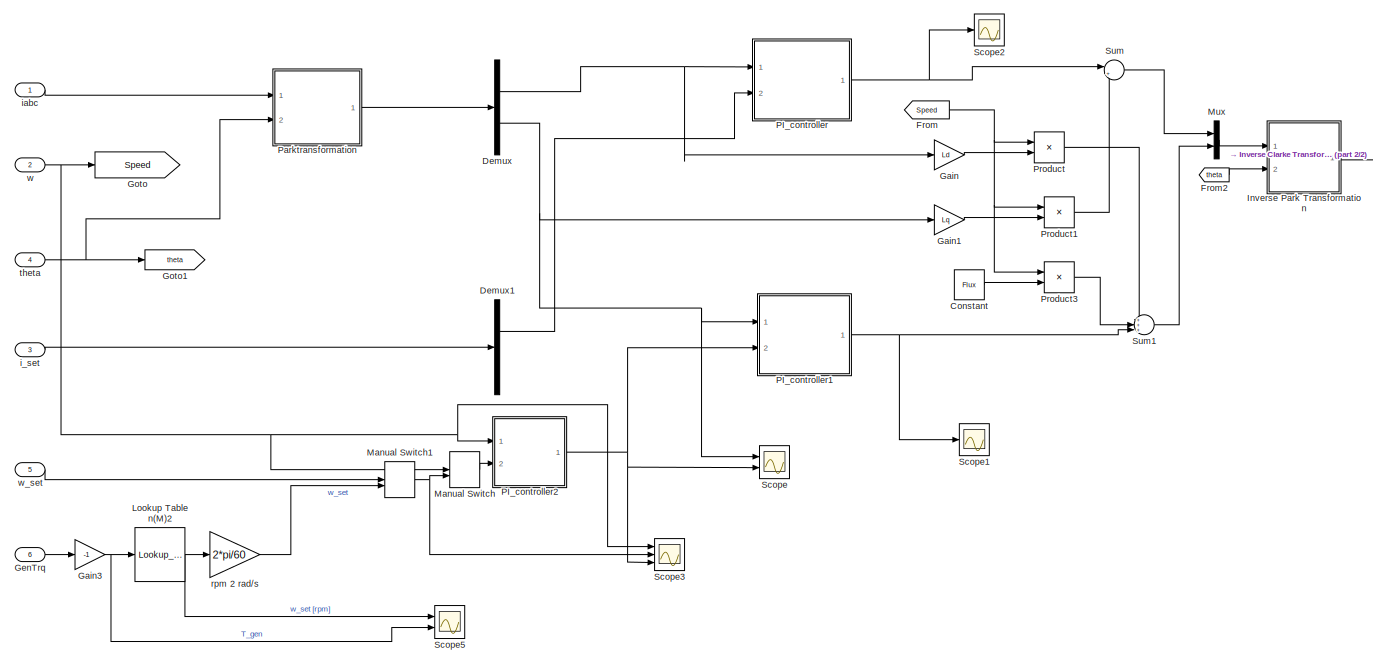
[diagram: Subsystem/converter  - part 1/2, most of the canvas]
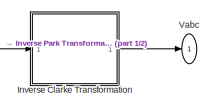
[diagram: Subsystem/converter  - part 2/2, top right region]
BLOCK [SubSystem] Subsystem/converter 
  Ports = [6, 1]
  RequestExecContextInheritance = off
  Variant = off
BLOCK [Constant] Subsystem/converter /Constant
  Value = Flux
BLOCK [Demux] Subsystem/converter /Demux
  DisplayOption = bar
  Outputs = 2
  Ports = [1, 2]
BLOCK [Demux] Subsystem/converter /Demux1
  DisplayOption = bar
  Outputs = 2
  Ports = [1, 2]
BLOCK [From] Subsystem/converter /From
  GotoTag = Speed
BLOCK [From] Subsystem/converter /From2
  GotoTag = theta
BLOCK [Gain] Subsystem/converter /Gain
  Gain = Ld
  OutDataTypeStr = Inherit: Inherit via internal rule
  ParamDataTypeStr = Inherit: Inherit via internal rule
  SaturateOnIntegerOverflow = off
BLOCK [Gain] Subsystem/converter /Gain1
  Gain = Lq
  OutDataTypeStr = Inherit: Inherit via internal rule
  ParamDataTypeStr = Inherit: Inherit via internal rule
  SaturateOnIntegerOverflow = off
BLOCK [Gain] Subsystem/converter /Gain3
  Gain = -1
  OutDataTypeStr = Inherit: Inherit via internal rule
  ParamDataTypeStr = Inherit: Inherit via internal rule
  SaturateOnIntegerOverflow = off
BLOCK [Inport] Subsystem/converter /GenTrq
  IconDisplay = Port number
  Port = 6
BLOCK [Goto] Subsystem/converter /Goto
  GotoTag = Speed
BLOCK [Goto] Subsystem/converter /Goto1
  GotoTag = theta
BLOCK [SubSystem] Subsystem/converter /Inverse Clarke Transformation
  Ports = [1, 1]
  RequestExecContextInheritance = off
  Variant = off
BLOCK [Demux] Subsystem/converter /Inverse Clarke Transformation/Demux
  DisplayOption = bar
  Outputs = 2
  Ports = [1, 2]
BLOCK [Gain] Subsystem/converter /Inverse Clarke Transformation/Gain1
  Gain = 1/2
  OutDataTypeStr = Inherit: Inherit via internal rule
  ParamDataTypeStr = Inherit: Inherit via internal rule
  SaturateOnIntegerOverflow = off
BLOCK [Gain] Subsystem/converter /Inverse Clarke Transformation/Gain2
  Gain = sqrt(3)
  OutDataTypeStr = Inherit: Inherit via internal rule
  ParamDataTypeStr = Inherit: Inherit via internal rule
  SaturateOnIntegerOverflow = off
BLOCK [Gain] Subsystem/converter /Inverse Clarke Transformation/Gain4
  Gain = 1/2
  OutDataTypeStr = Inherit: Inherit via internal rule
  ParamDataTypeStr = Inherit: Inherit via internal rule
  SaturateOnIntegerOverflow = off
BLOCK [Mux] Subsystem/converter /Inverse Clarke Transformation/Mux
  DisplayOption = bar
  Inputs = 3
  Ports = [3, 1]
BLOCK [Sum] Subsystem/converter /Inverse Clarke Transformation/Sum
  IconShape = round
  InputSameDT = off
  Inputs = |-+
  OutDataTypeStr = Inherit: Inherit via internal rule
  Ports = [2, 1]
  SaturateOnIntegerOverflow = off
BLOCK [Sum] Subsystem/converter /Inverse Clarke Transformation/Sum1
  IconShape = round
  InputSameDT = off
  Inputs = |--
  OutDataTypeStr = Inherit: Inherit via internal rule
  Ports = [2, 1]
  SaturateOnIntegerOverflow = off
BLOCK [Inport] Subsystem/converter /Inverse Clarke Transformation/ab
  IconDisplay = Port number
BLOCK [Outport] Subsystem/converter /Inverse Clarke Transformation/abc
  IconDisplay = Port number
BLOCK [SubSystem] Subsystem/converter /Inverse Park Transformation
  Ports = [2, 1]
  RequestExecContextInheritance = off
  Variant = off
BLOCK [Demux] Subsystem/converter /Inverse Park Transformation/Demux
  DisplayOption = bar
  Outputs = 2
  Ports = [1, 2]
BLOCK [Mux] Subsystem/converter /Inverse Park Transformation/Mux
  DisplayOption = bar
  Inputs = 2
  Ports = [2, 1]
BLOCK [Product] Subsystem/converter /Inverse Park Transformation/Product
  InputSameDT = off
  OutDataTypeStr = Inherit: Inherit via internal rule
  Ports = [2, 1]
  SaturateOnIntegerOverflow = off
BLOCK [Product] Subsystem/converter /Inverse Park Transformation/Product1
  InputSameDT = off
  OutDataTypeStr = Inherit: Inherit via internal rule
  Ports = [2, 1]
  SaturateOnIntegerOverflow = off
BLOCK [Product] Subsystem/converter /Inverse Park Transformation/Product2
  InputSameDT = off
  OutDataTypeStr = Inherit: Inherit via internal rule
  Ports = [2, 1]
  SaturateOnIntegerOverflow = off
BLOCK [Product] Subsystem/converter /Inverse Park Transformation/Product3
  InputSameDT = off
  OutDataTypeStr = Inherit: Inherit via internal rule
  Ports = [2, 1]
  SaturateOnIntegerOverflow = off
BLOCK [Sum] Subsystem/converter /Inverse Park Transformation/Sum
  IconShape = round
  InputSameDT = off
  Inputs = |+-
  OutDataTypeStr = Inherit: Inherit via internal rule
  Ports = [2, 1]
  SaturateOnIntegerOverflow = off
BLOCK [Sum] Subsystem/converter /Inverse Park Transformation/Sum1
  IconShape = round
  InputSameDT = off
  Inputs = |++
  OutDataTypeStr = Inherit: Inherit via internal rule
  Ports = [2, 1]
  SaturateOnIntegerOverflow = off
BLOCK [Outport] Subsystem/converter /Inverse Park Transformation/ab
  IconDisplay = Port number
BLOCK [Inport] Subsystem/converter /Inverse Park Transformation/angle
  IconDisplay = Port number
  Port = 2
BLOCK [Trigonometry] Subsystem/converter /Inverse Park Transformation/cosine
  Operator = cos
  Ports = [1, 1]
BLOCK [Inport] Subsystem/converter /Inverse Park Transformation/dq
  IconDisplay = Port number
BLOCK [Trigonometry] Subsystem/converter /Inverse Park Transformation/sine
  Ports = [1, 1]
BLOCK [Lookup_n-D] Subsystem/converter /Lookup Table n(M)2
  BreakpointsForDimension1 = Sollkurve_M_Optimum
  InternalRulePriority = Speed
  NumberOfTableDimensions = 1
  Ports = [1, 1]
  RndMeth = Simplest
  Table = Sollkurve_nGen_Optimum
BLOCK [ManualSwitch] Subsystem/converter /Manual Switch
  CurrentSetting = 0
BLOCK [ManualSwitch] Subsystem/converter /Manual Switch1
BLOCK [Mux] Subsystem/converter /Mux
  DisplayOption = bar
  Inputs = 2
  Ports = [2, 1]
BLOCK [SubSystem] Subsystem/converter /PI_controller
  Ports = [2, 1]
  RequestExecContextInheritance = off
  Variant = off
BLOCK [Gain] Subsystem/converter /PI_controller/Gain
  Gain = .92*Kp
  OutDataTypeStr = Inherit: Inherit via internal rule
  ParamDataTypeStr = Inherit: Inherit via internal rule
  SaturateOnIntegerOverflow = off
BLOCK [Gain] Subsystem/converter /PI_controller/Gain1
  Gain = .2*Ki
  OutDataTypeStr = Inherit: Inherit via internal rule
  ParamDataTypeStr = Inherit: Inherit via internal rule
  SaturateOnIntegerOverflow = off
BLOCK [Inport] Subsystem/converter /PI_controller/Id_meas
  IconDisplay = Port number
BLOCK [Inport] Subsystem/converter /PI_controller/Id_set
  IconDisplay = Port number
  Port = 2
BLOCK [Integrator] Subsystem/converter /PI_controller/Integrator
  Ports = [1, 1]
BLOCK [Step] Subsystem/converter /PI_controller/Step
  SampleTime = 0
BLOCK [Sum] Subsystem/converter /PI_controller/Sum
  IconShape = round
  InputSameDT = off
  Inputs = |++
  OutDataTypeStr = Inherit: Inherit via internal rule
  Ports = [2, 1]
  SaturateOnIntegerOverflow = off
BLOCK [Sum] Subsystem/converter /PI_controller/Sum1
  IconShape = round
  InputSameDT = off
  Inputs = |-+
  OutDataTypeStr = Inherit: Inherit via internal rule
  Ports = [2, 1]
  SaturateOnIntegerOverflow = off
BLOCK [Outport] Subsystem/converter /PI_controller/Vd_ref
  IconDisplay = Port number
BLOCK [Scope] Subsystem/converter /PI_controller/id 
  NumInputPorts = 2
  Ports = [2]
  ScopeSpecificationString = Simulink.scopes.TimeScopeBlockCfg('CurrentConfiguration', extmgr.ConfigurationSet(extmgr.Configuration('Core','General UI',true),extmgr.Configuration('Core','Source UI',true),extmgr.Configuration('Sources','WiredSimulink',true,'DataLoggingVariableName','ScopeData1'),extmgr.Configuration('Visuals','Time Domain',true,'SerializedDisplays',{struct('MinYLimReal','-416.47545','MaxYLimReal','110.35759','...<+1485ch>
BLOCK [SubSystem] Subsystem/converter /PI_controller1
  Ports = [2, 1]
  RequestExecContextInheritance = off
  Variant = off
BLOCK [Gain] Subsystem/converter /PI_controller1/Gain
  Gain = .5*Kp
  OutDataTypeStr = Inherit: Inherit via internal rule
  ParamDataTypeStr = Inherit: Inherit via internal rule
  SaturateOnIntegerOverflow = off
BLOCK [Gain] Subsystem/converter /PI_controller1/Gain1
  Gain = Ki
  OutDataTypeStr = Inherit: Inherit via internal rule
  ParamDataTypeStr = Inherit: Inherit via internal rule
  SaturateOnIntegerOverflow = off
BLOCK [Integrator] Subsystem/converter /PI_controller1/Integrator
  Ports = [1, 1]
BLOCK [Inport] Subsystem/converter /PI_controller1/Iq_meas
  IconDisplay = Port number
BLOCK [Inport] Subsystem/converter /PI_controller1/Iq_set
  IconDisplay = Port number
  Port = 2
BLOCK [Step] Subsystem/converter /PI_controller1/Step
  After = 10
  SampleTime = 0
  Time = 0
BLOCK [Sum] Subsystem/converter /PI_controller1/Sum
  IconShape = round
  InputSameDT = off
  Inputs = |++
  OutDataTypeStr = Inherit: Inherit via internal rule
  Ports = [2, 1]
  SaturateOnIntegerOverflow = off
BLOCK [Sum] Subsystem/converter /PI_controller1/Sum1
  IconShape = round
  InputSameDT = off
  Inputs = |-+
  OutDataTypeStr = Inherit: Inherit via internal rule
  Ports = [2, 1]
  SaturateOnIntegerOverflow = off
BLOCK [Outport] Subsystem/converter /PI_controller1/Vq_ref
  IconDisplay = Port number
BLOCK [Scope] Subsystem/converter /PI_controller1/iq
  NumInputPorts = 2
  Ports = [2]
  ScopeSpecificationString = Simulink.scopes.TimeScopeBlockCfg('CurrentConfiguration', extmgr.ConfigurationSet(extmgr.Configuration('Core','General UI',true),extmgr.Configuration('Core','Source UI',true),extmgr.Configuration('Sources','WiredSimulink',true,'DataLoggingVariableName','ScopeData2'),extmgr.Configuration('Visuals','Time Domain',true,'SerializedDisplays',{struct('MinYLimReal','-1089.93767','MaxYLimReal','161.56822',...<+1510ch>
BLOCK [SubSystem] Subsystem/converter /PI_controller2
  Ports = [2, 1]
  RequestExecContextInheritance = off
  Variant = off
BLOCK [Outport] Subsystem/converter /PI_controller2/Act
  IconDisplay = Port number
BLOCK [Gain] Subsystem/converter /PI_controller2/Gain
  Gain = Kp_Speed
  OutDataTypeStr = Inherit: Inherit via internal rule
  ParamDataTypeStr = Inherit: Inherit via internal rule
  SaturateOnIntegerOverflow = off
BLOCK [Gain] Subsystem/converter /PI_controller2/Gain1
  Gain = Ki_Speed
  OutDataTypeStr = Inherit: Inherit via internal rule
  ParamDataTypeStr = Inherit: Inherit via internal rule
  SaturateOnIntegerOverflow = off
BLOCK [Integrator] Subsystem/converter /PI_controller2/Integrator
  Ports = [1, 1]
BLOCK [Step] Subsystem/converter /PI_controller2/Step
  After = 2
  SampleTime = 0
  Time = 0
BLOCK [Sum] Subsystem/converter /PI_controller2/Sum
  IconShape = round
  InputSameDT = off
  Inputs = |++
  OutDataTypeStr = Inherit: Inherit via internal rule
  Ports = [2, 1]
  SaturateOnIntegerOverflow = off
BLOCK [Sum] Subsystem/converter /PI_controller2/Sum1
  IconShape = round
  InputSameDT = off
  Inputs = |-+
  OutDataTypeStr = Inherit: Inherit via internal rule
  Ports = [2, 1]
  SaturateOnIntegerOverflow = off
BLOCK [Inport] Subsystem/converter /PI_controller2/meas
  IconDisplay = Port number
BLOCK [Inport] Subsystem/converter /PI_controller2/set
  IconDisplay = Port number
  Port = 2
BLOCK [Scope] Subsystem/converter /PI_controller2/speed 
  NumInputPorts = 2
  Ports = [2]
  ScopeSpecificationString = Simulink.scopes.TimeScopeBlockCfg('CurrentConfiguration', extmgr.ConfigurationSet(extmgr.Configuration('Core','General UI',true),extmgr.Configuration('Core','Source UI',true),extmgr.Configuration('Sources','WiredSimulink',true,'DataLoggingVariableName','ScopeData3'),extmgr.Configuration('Visuals','Time Domain',true,'SerializedDisplays',{struct('MinYLimReal','1.73119','MaxYLimReal','5.3632','YLabel...<+1766ch>
BLOCK [SubSystem] Subsystem/converter /Parktransformation
  Ports = [2, 1]
  RequestExecContextInheritance = off
  Variant = off
BLOCK [SubSystem] Subsystem/converter /Parktransformation/3phase to ab
  Ports = [1, 1]
  RequestExecContextInheritance = off
  Variant = off
BLOCK [Demux] Subsystem/converter /Parktransformation/3phase to ab/Demux
  DisplayOption = bar
  Outputs = 3
  Ports = [1, 3]
BLOCK [Gain] Subsystem/converter /Parktransformation/3phase to ab/Gain3
  Gain = 1/sqrt(3)
  OutDataTypeStr = Inherit: Inherit via internal rule
  ParamDataTypeStr = Inherit: Inherit via internal rule
  SaturateOnIntegerOverflow = off
BLOCK [Inport] Subsystem/converter /Parktransformation/3phase to ab/In1
  IconDisplay = Port number
BLOCK [Mux] Subsystem/converter /Parktransformation/3phase to ab/Mux
  DisplayOption = bar
  Inputs = 2
  Ports = [2, 1]
BLOCK [Outport] Subsystem/converter /Parktransformation/3phase to ab/Out1
  IconDisplay = Port number
BLOCK [Scope] Subsystem/converter /Parktransformation/3phase to ab/Scope
  Ports = [1]
  ScopeSpecificationString = Simulink.scopes.TimeScopeBlockCfg('CurrentConfiguration', extmgr.ConfigurationSet(extmgr.Configuration('Core','General UI',true),extmgr.Configuration('Core','Source UI',true),extmgr.Configuration('Sources','WiredSimulink',true,'DataLoggingVariableName','ScopeData3'),extmgr.Configuration('Visuals','Time Domain',true,'SerializedDisplays',{struct('MinYLimReal','-1289.59906','MaxYLimReal','11606.39156...<+1451ch>
BLOCK [Sum] Subsystem/converter /Parktransformation/3phase to ab/Sum1
  IconShape = round
  InputSameDT = off
  Inputs = |+-
  OutDataTypeStr = Inherit: Inherit via internal rule
  Ports = [2, 1]
  SaturateOnIntegerOverflow = off
BLOCK [SubSystem] Subsystem/converter /Parktransformation/alpha-beta to dq
  Ports = [2, 1]
  RequestExecContextInheritance = off
  Variant = off
BLOCK [Demux] Subsystem/converter /Parktransformation/alpha-beta to dq/Demux
  DisplayOption = bar
  Outputs = 2
  Ports = [1, 2]
BLOCK [Mux] Subsystem/converter /Parktransformation/alpha-beta to dq/Mux
  DisplayOption = bar
  Inputs = 2
  Ports = [2, 1]
BLOCK [Outport] Subsystem/converter /Parktransformation/alpha-beta to dq/Out1
  IconDisplay = Port number
BLOCK [Product] Subsystem/converter /Parktransformation/alpha-beta to dq/Product
  InputSameDT = off
  OutDataTypeStr = Inherit: Inherit via internal rule
  Ports = [2, 1]
  RndMeth = Floor
  SaturateOnIntegerOverflow = off
BLOCK [Product] Subsystem/converter /Parktransformation/alpha-beta to dq/Product1
  InputSameDT = off
  OutDataTypeStr = Inherit: Inherit via internal rule
  Ports = [2, 1]
  RndMeth = Floor
  SaturateOnIntegerOverflow = off
BLOCK [Product] Subsystem/converter /Parktransformation/alpha-beta to dq/Product2
  InputSameDT = off
  OutDataTypeStr = Inherit: Inherit via internal rule
  Ports = [2, 1]
  RndMeth = Floor
  SaturateOnIntegerOverflow = off
BLOCK [Product] Subsystem/converter /Parktransformation/alpha-beta to dq/Product3
  InputSameDT = off
  OutDataTypeStr = Inherit: Inherit via internal rule
  Ports = [2, 1]
  RndMeth = Floor
  SaturateOnIntegerOverflow = off
BLOCK [Sum] Subsystem/converter /Parktransformation/alpha-beta to dq/Sum
  IconShape = round
  InputSameDT = off
  Inputs = |++
  OutDataTypeStr = Inherit: Inherit via internal rule
  Ports = [2, 1]
  SaturateOnIntegerOverflow = off
BLOCK [Sum] Subsystem/converter /Parktransformation/alpha-beta to dq/Sum1
  IconShape = round
  InputSameDT = off
  Inputs = |+-
  OutDataTypeStr = Inherit: Inherit via internal rule
  Ports = [2, 1]
  SaturateOnIntegerOverflow = off
BLOCK [Trigonometry] Subsystem/converter /Parktransformation/alpha-beta to dq/Trigonometric Function
  Operator = cos
  Ports = [1, 1]
BLOCK [Trigonometry] Subsystem/converter /Parktransformation/alpha-beta to dq/Trigonometric Function1
  Ports = [1, 1]
BLOCK [Inport] Subsystem/converter /Parktransformation/alpha-beta to dq/alpha-beta 
  IconDisplay = Port number
  Port = 2
BLOCK [Inport] Subsystem/converter /Parktransformation/alpha-beta to dq/theta
  IconDisplay = Port number
BLOCK [Inport] Subsystem/converter /Parktransformation/i_abc
  IconDisplay = Port number
BLOCK [Outport] Subsystem/converter /Parktransformation/i_dq
  IconDisplay = Port number
BLOCK [Inport] Subsystem/converter /Parktransformation/theta
  IconDisplay = Port number
  Port = 2
BLOCK [Product] Subsystem/converter /Product
  InputSameDT = off
  OutDataTypeStr = Inherit: Inherit via internal rule
  Ports = [2, 1]
  RndMeth = Floor
  SaturateOnIntegerOverflow = off
BLOCK [Product] Subsystem/converter /Product1
  InputSameDT = off
  OutDataTypeStr = Inherit: Inherit via internal rule
  Ports = [2, 1]
  RndMeth = Floor
  SaturateOnIntegerOverflow = off
BLOCK [Product] Subsystem/converter /Product3
  InputSameDT = off
  OutDataTypeStr = Inherit: Inherit via internal rule
  Ports = [2, 1]
  RndMeth = Floor
  SaturateOnIntegerOverflow = off
BLOCK [Scope] Subsystem/converter /Scope
  NumInputPorts = 2
  Ports = [2]
  ScopeSpecificationString = Simulink.scopes.TimeScopeBlockCfg('CurrentConfiguration', extmgr.ConfigurationSet(extmgr.Configuration('Core','General UI',true),extmgr.Configuration('Core','Source UI',true),extmgr.Configuration('Sources','WiredSimulink',true,'DataLoggingVariableName','ScopeData3'),extmgr.Configuration('Visuals','Time Domain',true,'SerializedDisplays',{struct('MinYLimReal','-36.18709','MaxYLimReal','4.51015','YLa...<+2443ch>
BLOCK [Scope] Subsystem/converter /Scope1
  Ports = [1]
  ScopeSpecificationString = Simulink.scopes.TimeScopeBlockCfg('CurrentConfiguration', extmgr.ConfigurationSet(extmgr.Configuration('Core','General UI',true),extmgr.Configuration('Core','Source UI',true),extmgr.Configuration('Sources','WiredSimulink',true,'DataLoggingVariableName','ScopeData1'),extmgr.Configuration('Visuals','Time Domain',true,'SerializedDisplays',{struct('MinYLimReal','-4281.51807','MaxYLimReal','968.36592',...<+1448ch>
BLOCK [Scope] Subsystem/converter /Scope2
  Ports = [1]
  ScopeSpecificationString = Simulink.scopes.TimeScopeBlockCfg('CurrentConfiguration', extmgr.ConfigurationSet(extmgr.Configuration('Core','General UI',true),extmgr.Configuration('Core','Source UI',true),extmgr.Configuration('Sources','WiredSimulink',true,'DataLoggingVariableName','ScopeData2'),extmgr.Configuration('Visuals','Time Domain',true,'SerializedDisplays',{struct('MinYLimReal','-53.7234','MaxYLimReal','483.51062','YL...<+1453ch>
BLOCK [Scope] Subsystem/converter /Scope3
  NumInputPorts = 3
  Ports = [3]
  ScopeSpecificationString = Simulink.scopes.TimeScopeBlockCfg('CurrentConfiguration', extmgr.ConfigurationSet(extmgr.Configuration('Core','General UI',true),extmgr.Configuration('Core','Source UI',true),extmgr.Configuration('Sources','WiredSimulink',true,'DataLoggingVariableName','ScopeData1'),extmgr.Configuration('Visuals','Time Domain',true,'SerializedDisplays',{struct('MinYLimReal','1.51759','MaxYLimReal','2.18543','YLabe...<+2800ch>
BLOCK [Scope] Subsystem/converter /Scope5
  NumInputPorts = 2
  Ports = [2]
  ScopeSpecificationString = Simulink.scopes.TimeScopeBlockCfg('CurrentConfiguration', extmgr.ConfigurationSet(extmgr.Configuration('Core','General UI',true),extmgr.Configuration('Core','Source UI',true),extmgr.Configuration('Sources','WiredSimulink',true,'DataLoggingVariableName','ScopeData1'),extmgr.Configuration('Visuals','Time Domain',true,'SerializedDisplays',{struct('MinYLimReal','13.53664','MaxYLimReal','23.96526','YLa...<+2309ch>
BLOCK [Sum] Subsystem/converter /Sum
  IconShape = round
  InputSameDT = off
  Inputs = |+-
  OutDataTypeStr = Inherit: Inherit via internal rule
  Ports = [2, 1]
  SaturateOnIntegerOverflow = off
BLOCK [Sum] Subsystem/converter /Sum1
  IconShape = round
  InputSameDT = off
  Inputs = +++|
  OutDataTypeStr = Inherit: Inherit via internal rule
  Ports = [3, 1]
  SaturateOnIntegerOverflow = off
BLOCK [Outport] Subsystem/converter /Vabc
  IconDisplay = Port number
BLOCK [Inport] Subsystem/converter /i_set
  IconDisplay = Port number
  Port = 3
BLOCK [Inport] Subsystem/converter /iabc
  IconDisplay = Port number
BLOCK [Gain] Subsystem/converter /rpm 2 rad//s
  Gain = 2*pi/60
  OutDataTypeStr = Inherit: Inherit via internal rule
  ParamDataTypeStr = Inherit: Inherit via internal rule
  SaturateOnIntegerOverflow = off
BLOCK [Inport] Subsystem/converter /theta
  IconDisplay = Port number
  Port = 4
BLOCK [Inport] Subsystem/converter /w
  IconDisplay = Port number
  Port = 2
BLOCK [Inport] Subsystem/converter /w_set
  IconDisplay = Port number
  Port = 5
BLOCK [Inport] Subsystem/speed
  IconDisplay = Port number
BLOCK [Goto] Subsystem/theta2
  GotoTag = theta
BLOCK [ToWorkspace] To Workspace
  MaxDataPoints = inf
  Ports = [1]
  SampleTime = -1
  VariableName = Time
BLOCK [SubSystem] Yaw Controller
  Ports = [0, 1]
  RequestExecContextInheritance = off
  Variant = off
BLOCK [Mux] Yaw Controller/Mux
  DisplayOption = bar
  Inputs = 2
  Ports = [2, 1]
BLOCK [Outport] Yaw Controller/Out1
  IconDisplay = Port number
BLOCK [Constant] Yaw Controller/Yaw Position
  Value = 0
BLOCK [Constant] Yaw Controller/Yaw rate
  Value = 0
BLOCK [ToWorkspace] qdotdot_out
  MaxDataPoints = inf
  Ports = [1]
  SampleTime = -1
  VariableName = OutData
BLOCK [Gain] rpm to rad//s
  Gain = 2*pi/60
  OutDataTypeStr = Inherit: Inherit via internal rule
  ParamDataTypeStr = Inherit: Inherit via internal rule
  SaturateOnIntegerOverflow = off
BLOCK [Gain] rpm to rad//s1
  Gain = 2*pi/60
  OutDataTypeStr = Inherit: Inherit via internal rule
  ParamDataTypeStr = Inherit: Inherit via internal rule
  SaturateOnIntegerOverflow = off
BLOCK [Scope] wind
  NumInputPorts = 3
  Ports = [3]
  ScopeSpecificationString = Simulink.scopes.TimeScopeBlockCfg('CurrentConfiguration', extmgr.ConfigurationSet(extmgr.Configuration('Core','General UI',true),extmgr.Configuration('Core','Source UI',true),extmgr.Configuration('Sources','WiredSimulink',true,'DataLoggingVariableName','ScopeData4'),extmgr.Configuration('Visuals','Time Domain',true,'SerializedDisplays',{struct('MinYLimReal','8.42436','MaxYLimReal','11.20144','YLab...<+1709ch>
ANNOTATION (root): Select LSS speed at entrance to gearbox (rpm)
LINE Clock:1 -> To Workspace:1
NET Demux:18 -> Product:1, Scope2:1
LINE Demux:19 -> Rot- & Gen-Pwr:2
LINE Demux:2 -> wind:1
LINE Demux:3 -> wind:2
NET Demux:32 -> Gen Torqe:2, Rot- & Gen-Speed [rpm]1:2, Rot- & Gen-Speed [rpm]:2, rpm to rad//s1:1
NET Demux:33 -> Gen Torqe:1, Product1:1
LINE Demux:34 -> Rot- & Gen-Pwr:3
LINE Demux:4 -> wind:3
NET Demux:5 -> GBRatio [rpm]:1, Rot- & Gen-Speed [rpm]1:1, Subsystem:1, rpm to rad//s:1
LINE Demux:6 -> Pitch:1
LINE FAST Nonlinear Wind Turbine/Blade Pitch Angles (rad):1 -> FAST Nonlinear Wind Turbine/Mux1:3
LINE FAST Nonlinear Wind Turbine/Gen. Torque (Nm) and Power (W):1 -> FAST Nonlinear Wind Turbine/Signal Specification1:1
LINE FAST Nonlinear Wind Turbine/High-Speed Shaft Braking Fraction (-):1 -> FAST Nonlinear Wind Turbine/Mux1:4
LINE FAST Nonlinear Wind Turbine/Mux1:1 -> FAST Nonlinear Wind Turbine/S-Function:1
LINE FAST Nonlinear Wind Turbine/S-Function:1 -> FAST Nonlinear Wind Turbine/OutData:1
LINE FAST Nonlinear Wind Turbine/Signal Specification1:1 -> FAST Nonlinear Wind Turbine/Mux1:1
LINE FAST Nonlinear Wind Turbine/Signal Specification2:1 -> FAST Nonlinear Wind Turbine/Mux1:2
LINE FAST Nonlinear Wind Turbine/Yaw Position (rad) and Rate (rad//s):1 -> FAST Nonlinear Wind Turbine/Signal Specification2:1
NET FAST Nonlinear Wind Turbine:1 -> Demux:1, qdotdot_out:1
LINE GBRatio [rpm]:1 -> Rot- & Gen-Speed [rpm]:1
LINE GBRatio:1 -> Rot- & Gen-Speed [rad//s]:1
LINE Gain2:1 -> Scope1:2
LINE High-Speed Shaft Brake/High-Speed Shaft Braking Fraction:1 -> High-Speed Shaft Brake/Out1:1
LINE High-Speed Shaft Brake:1 -> FAST Nonlinear Wind Turbine:4
LINE Pitch Controller/Blade Pitch Angles:1 -> Pitch Controller/Pitch-winkel:1
LINE Pitch Controller/Pitch-winkel:1 -> Pitch Controller/dergree2rad:1
LINE Pitch Controller/dergree2rad:1 -> Pitch Controller/Out1:1
LINE Pitch Controller:1 -> FAST Nonlinear Wind Turbine:3
LINE Product1:1 -> Rot- & Gen-Pwr:4
NET Product:1 -> Rot- & Gen-Pwr:1, Scope1:1
LINE Subsystem/Constant1:1 -> Subsystem/Manual Switch1:1
LINE Subsystem/Constant3:1 -> Subsystem/Mux:1
LINE Subsystem/Constant4:1 -> Subsystem/Mux:2
LINE Subsystem/Constant:1 -> Subsystem/Manual Switch:1
LINE Subsystem/From1:1 -> Subsystem/Generator :3
LINE Subsystem/From2:1 -> Subsystem/converter :4
NET Subsystem/From:1 -> Subsystem/Product1:1, Subsystem/Product:2
LINE Subsystem/Gain1:1 -> Subsystem/Manual Switch:2
NET Subsystem/Gain2:1 -> Subsystem/GenPowr:1, Subsystem/Mux1:2
NET Subsystem/Gain:1 -> Subsystem/Generator :1, Subsystem/Integrator3:1
LINE Subsystem/Generator /Demux:1 -> Subsystem/Generator /PMS-model:2
LINE Subsystem/Generator /Demux:2 -> Subsystem/Generator /PMS-model:3
LINE Subsystem/Generator /From1:1 -> Subsystem/Generator /Inverse Park Transformation:1
LINE Subsystem/Generator /From2:1 -> Subsystem/Generator /Inverse Park Transformation:2
LINE Subsystem/Generator /From6:1 -> Subsystem/Generator /power calculation:1
LINE Subsystem/Generator /From7:1 -> Subsystem/Generator /power calculation:2
NET Subsystem/Generator /Inverse Clarke Transformation/Demux:1 -> Subsystem/Generator /Inverse Clarke Transformation/Mux:1, Subsystem/Generator /Inverse Clarke Transformation/Sum1:1, Subsystem/Generator /Inverse Clarke Transformation/Sum:1
LINE Subsystem/Generator /Inverse Clarke Transformation/Demux:2 -> Subsystem/Generator /Inverse Clarke Transformation/Gain2:1
LINE Subsystem/Generator /Inverse Clarke Transformation/Gain1:1 -> Subsystem/Generator /Inverse Clarke Transformation/Mux:3
NET Subsystem/Generator /Inverse Clarke Transformation/Gain2:1 -> Subsystem/Generator /Inverse Clarke Transformation/Sum1:2, Subsystem/Generator /Inverse Clarke Transformation/Sum:2
LINE Subsystem/Generator /Inverse Clarke Transformation/Gain4:1 -> Subsystem/Generator /Inverse Clarke Transformation/Mux:2
LINE Subsystem/Generator /Inverse Clarke Transformation/Mux:1 -> Subsystem/Generator /Inverse Clarke Transformation/abc:1
LINE Subsystem/Generator /Inverse Clarke Transformation/Sum1:1 -> Subsystem/Generator /Inverse Clarke Transformation/Gain1:1
LINE Subsystem/Generator /Inverse Clarke Transformation/Sum:1 -> Subsystem/Generator /Inverse Clarke Transformation/Gain4:1
LINE Subsystem/Generator /Inverse Clarke Transformation/ab:1 -> Subsystem/Generator /Inverse Clarke Transformation/Demux:1
LINE Subsystem/Generator /Inverse Clarke Transformation:1 -> Subsystem/Generator /I_stator :1
NET Subsystem/Generator /Inverse Park Transformation/Demux:1 -> Subsystem/Generator /Inverse Park Transformation/Product1:1, Subsystem/Generator /Inverse Park Transformation/Product:1
NET Subsystem/Generator /Inverse Park Transformation/Demux:2 -> Subsystem/Generator /Inverse Park Transformation/Product2:1, Subsystem/Generator /Inverse Park Transformation/Product3:1
LINE Subsystem/Generator /Inverse Park Transformation/Mux:1 -> Subsystem/Generator /Inverse Park Transformation/ab:1
LINE Subsystem/Generator /Inverse Park Transformation/Product1:1 -> Subsystem/Generator /Inverse Park Transformation/Sum:1
LINE Subsystem/Generator /Inverse Park Transformation/Product2:1 -> Subsystem/Generator /Inverse Park Transformation/Sum:2
LINE Subsystem/Generator /Inverse Park Transformation/Product3:1 -> Subsystem/Generator /Inverse Park Transformation/Sum1:2
LINE Subsystem/Generator /Inverse Park Transformation/Product:1 -> Subsystem/Generator /Inverse Park Transformation/Sum1:1
LINE Subsystem/Generator /Inverse Park Transformation/Sum1:1 -> Subsystem/Generator /Inverse Park Transformation/Mux:2
LINE Subsystem/Generator /Inverse Park Transformation/Sum:1 -> Subsystem/Generator /Inverse Park Transformation/Mux:1
NET Subsystem/Generator /Inverse Park Transformation/angle:1 -> Subsystem/Generator /Inverse Park Transformation/cosine:1, Subsystem/Generator /Inverse Park Transformation/sine:1
NET Subsystem/Generator /Inverse Park Transformation/cosine:1 -> Subsystem/Generator /Inverse Park Transformation/Product1:2, Subsystem/Generator /Inverse Park Transformation/Product3:2
LINE Subsystem/Generator /Inverse Park Transformation/dq:1 -> Subsystem/Generator /Inverse Park Transformation/Demux:1
NET Subsystem/Generator /Inverse Park Transformation/sine:1 -> Subsystem/Generator /Inverse Park Transformation/Product2:2, Subsystem/Generator /Inverse Park Transformation/Product:2
LINE Subsystem/Generator /Inverse Park Transformation:1 -> Subsystem/Generator /Inverse Clarke Transformation:1
LINE Subsystem/Generator /PMS-model/1//Ld:1 -> Subsystem/Generator /PMS-model/Integrator:1
LINE Subsystem/Generator /PMS-model/1//Lq:1 -> Subsystem/Generator /PMS-model/Integrator1:1
LINE Subsystem/Generator /PMS-model/3//2 p:1 -> Subsystem/Generator /PMS-model/Torque:1
LINE Subsystem/Generator /PMS-model/Flux 1:1 -> Subsystem/Generator /PMS-model/Sum3:1
LINE Subsystem/Generator /PMS-model/Flux :1 -> Subsystem/Generator /PMS-model/Sum1:3
NET Subsystem/Generator /PMS-model/Integrator1:1 -> Subsystem/Generator /PMS-model/Flux 1:1, Subsystem/Generator /PMS-model/Lq:1, Subsystem/Generator /PMS-model/Mux:2, Subsystem/Generator /PMS-model/Product2:2, Subsystem/Generator /PMS-model/R1:1
NET Subsystem/Generator /PMS-model/Integrator:1 -> Subsystem/Generator /PMS-model/Ld:1, Subsystem/Generator /PMS-model/Mux:1, Subsystem/Generator /PMS-model/Product2:1, Subsystem/Generator /PMS-model/R:1
LINE Subsystem/Generator /PMS-model/Ld-Lq:1 -> Subsystem/Generator /PMS-model/Sum3:2
LINE Subsystem/Generator /PMS-model/Ld:1 -> Subsystem/Generator /PMS-model/Product1:2
LINE Subsystem/Generator /PMS-model/Lq:1 -> Subsystem/Generator /PMS-model/Product:2
LINE Subsystem/Generator /PMS-model/Mux:1 -> Subsystem/Generator /PMS-model/I_dq:1
LINE Subsystem/Generator /PMS-model/Product1:1 -> Subsystem/Generator /PMS-model/Sum1:1
LINE Subsystem/Generator /PMS-model/Product2:1 -> Subsystem/Generator /PMS-model/Ld-Lq:1
LINE Subsystem/Generator /PMS-model/Product:1 -> Subsystem/Generator /PMS-model/Sum:1
LINE Subsystem/Generator /PMS-model/R1:1 -> Subsystem/Generator /PMS-model/Sum1:2
LINE Subsystem/Generator /PMS-model/R:1 -> Subsystem/Generator /PMS-model/Sum:2
LINE Subsystem/Generator /PMS-model/Sum1:1 -> Subsystem/Generator /PMS-model/1//Lq:1
LINE Subsystem/Generator /PMS-model/Sum3:1 -> Subsystem/Generator /PMS-model/3//2 p:1
LINE Subsystem/Generator /PMS-model/Sum:1 -> Subsystem/Generator /PMS-model/1//Ld:1
LINE Subsystem/Generator /PMS-model/Vd:1 -> Subsystem/Generator /PMS-model/Sum:3
LINE Subsystem/Generator /PMS-model/Vq:1 -> Subsystem/Generator /PMS-model/Sum1:4
NET Subsystem/Generator /PMS-model/w:1 -> Subsystem/Generator /PMS-model/Flux :1, Subsystem/Generator /PMS-model/Product1:1, Subsystem/Generator /PMS-model/Product:1
NET Subsystem/Generator /PMS-model:1 -> Subsystem/Generator /Goto1:1, Subsystem/Generator /Torque:1
LINE Subsystem/Generator /PMS-model:2 -> Subsystem/Generator /Goto:1
LINE Subsystem/Generator /Parktransformation/Three-phase current/Constant3:1 -> Subsystem/Generator /Parktransformation/Three-phase current/Sum:2
LINE Subsystem/Generator /Parktransformation/Three-phase current/Constant4:1 -> Subsystem/Generator /Parktransformation/Three-phase current/Sum1:2
LINE Subsystem/Generator /Parktransformation/Three-phase current/Gain:1 -> Subsystem/Generator /Parktransformation/Three-phase current/Integrator:1
LINE Subsystem/Generator /Parktransformation/Three-phase current/In1:1 -> Subsystem/Generator /Parktransformation/Three-phase current/Gain:1
LINE Subsystem/Generator /Parktransformation/Three-phase current/In2:1 -> Subsystem/Generator /Parktransformation/Three-phase current/Product:2
NET Subsystem/Generator /Parktransformation/Three-phase current/Integrator:1 -> Subsystem/Generator /Parktransformation/Three-phase current/Mux:1, Subsystem/Generator /Parktransformation/Three-phase current/Sum1:1, Subsystem/Generator /Parktransformation/Three-phase current/Sum:1
LINE Subsystem/Generator /Parktransformation/Three-phase current/Mux:1 -> Subsystem/Generator /Parktransformation/Three-phase current/Trigonometric Function:1
LINE Subsystem/Generator /Parktransformation/Three-phase current/Product:1 -> Subsystem/Generator /Parktransformation/Three-phase current/abc :1
LINE Subsystem/Generator /Parktransformation/Three-phase current/Sum1:1 -> Subsystem/Generator /Parktransformation/Three-phase current/Mux:3
LINE Subsystem/Generator /Parktransformation/Three-phase current/Sum:1 -> Subsystem/Generator /Parktransformation/Three-phase current/Mux:2
LINE Subsystem/Generator /Parktransformation/Three-phase current/Trigonometric Function:1 -> Subsystem/Generator /Parktransformation/Three-phase current/Product:1
LINE Subsystem/Generator /Parktransformation/abc to alpha-beta/Demux:1 -> Subsystem/Generator /Parktransformation/abc to alpha-beta/Mux:1
LINE Subsystem/Generator /Parktransformation/abc to alpha-beta/Demux:2 -> Subsystem/Generator /Parktransformation/abc to alpha-beta/Sum:1
LINE Subsystem/Generator /Parktransformation/abc to alpha-beta/Demux:3 -> Subsystem/Generator /Parktransformation/abc to alpha-beta/Sum:2
LINE Subsystem/Generator /Parktransformation/abc to alpha-beta/Gain:1 -> Subsystem/Generator /Parktransformation/abc to alpha-beta/Mux:2
LINE Subsystem/Generator /Parktransformation/abc to alpha-beta/Mux:1 -> Subsystem/Generator /Parktransformation/abc to alpha-beta/alpha-beta :1
LINE Subsystem/Generator /Parktransformation/abc to alpha-beta/Sum:1 -> Subsystem/Generator /Parktransformation/abc to alpha-beta/Gain:1
LINE Subsystem/Generator /Parktransformation/abc to alpha-beta/abc:1 -> Subsystem/Generator /Parktransformation/abc to alpha-beta/Demux:1
NET Subsystem/Generator /Parktransformation/abc to alpha-beta:1 -> Subsystem/Generator /Parktransformation/Scope1:1, Subsystem/Generator /Parktransformation/alpha-beta to dq:2
NET Subsystem/Generator /Parktransformation/alpha-beta to dq/Demux:1 -> Subsystem/Generator /Parktransformation/alpha-beta to dq/Product3:1, Subsystem/Generator /Parktransformation/alpha-beta to dq/Product:1
NET Subsystem/Generator /Parktransformation/alpha-beta to dq/Demux:2 -> Subsystem/Generator /Parktransformation/alpha-beta to dq/Product1:1, Subsystem/Generator /Parktransformation/alpha-beta to dq/Product2:1
LINE Subsystem/Generator /Parktransformation/alpha-beta to dq/Mux:1 -> Subsystem/Generator /Parktransformation/alpha-beta to dq/Out1:1
LINE Subsystem/Generator /Parktransformation/alpha-beta to dq/Product1:1 -> Subsystem/Generator /Parktransformation/alpha-beta to dq/Sum:2
LINE Subsystem/Generator /Parktransformation/alpha-beta to dq/Product2:1 -> Subsystem/Generator /Parktransformation/alpha-beta to dq/Sum1:1
LINE Subsystem/Generator /Parktransformation/alpha-beta to dq/Product3:1 -> Subsystem/Generator /Parktransformation/alpha-beta to dq/Sum1:2
LINE Subsystem/Generator /Parktransformation/alpha-beta to dq/Product:1 -> Subsystem/Generator /Parktransformation/alpha-beta to dq/Sum:1
LINE Subsystem/Generator /Parktransformation/alpha-beta to dq/Sum1:1 -> Subsystem/Generator /Parktransformation/alpha-beta to dq/Mux:2
LINE Subsystem/Generator /Parktransformation/alpha-beta to dq/Sum:1 -> Subsystem/Generator /Parktransformation/alpha-beta to dq/Mux:1
NET Subsystem/Generator /Parktransformation/alpha-beta to dq/Trigonometric Function1:1 -> Subsystem/Generator /Parktransformation/alpha-beta to dq/Product1:2, Subsystem/Generator /Parktransformation/alpha-beta to dq/Product3:2
NET Subsystem/Generator /Parktransformation/alpha-beta to dq/Trigonometric Function:1 -> Subsystem/Generator /Parktransformation/alpha-beta to dq/Product2:2, Subsystem/Generator /Parktransformation/alpha-beta to dq/Product:2
LINE Subsystem/Generator /Parktransformation/alpha-beta to dq/alpha-beta :1 -> Subsystem/Generator /Parktransformation/alpha-beta to dq/Demux:1
NET Subsystem/Generator /Parktransformation/alpha-beta to dq/theta:1 -> Subsystem/Generator /Parktransformation/alpha-beta to dq/Trigonometric Function1:1, Subsystem/Generator /Parktransformation/alpha-beta to dq/Trigonometric Function:1
NET Subsystem/Generator /Parktransformation/alpha-beta to dq:1 -> Subsystem/Generator /Parktransformation/Scope2:1, Subsystem/Generator /Parktransformation/v_dq:1
LINE Subsystem/Generator /Parktransformation/f1:1 -> Subsystem/Generator /Parktransformation/Three-phase current:2
LINE Subsystem/Generator /Parktransformation/theta:1 -> Subsystem/Generator /Parktransformation/alpha-beta to dq:1
NET Subsystem/Generator /Parktransformation/v_abc:1 -> Subsystem/Generator /Parktransformation/Scope3:1, Subsystem/Generator /Parktransformation/abc to alpha-beta:1
NET Subsystem/Generator /Parktransformation:1 -> Subsystem/Generator /Demux:1, Subsystem/Generator /Goto2:1
LINE Subsystem/Generator /V_stator :1 -> Subsystem/Generator /Parktransformation:1
LINE Subsystem/Generator /power calculation/Complex to Magnitude-Angle:1 -> Subsystem/Generator /power calculation/apparent power:1
NET Subsystem/Generator /power calculation/Complex to Magnitude-Angle:2 -> Subsystem/Generator /power calculation/Gain:1, Subsystem/Generator /power calculation/Trigonometric Function:1
LINE Subsystem/Generator /power calculation/Complex to Real-Imag:1 -> Subsystem/Generator /power calculation/active power:1
LINE Subsystem/Generator /power calculation/Complex to Real-Imag:2 -> Subsystem/Generator /power calculation/reactive power:1
LINE Subsystem/Generator /power calculation/Demux1:1 -> Subsystem/Generator /power calculation/Real-Imag to Complex1:1
LINE Subsystem/Generator /power calculation/Demux1:2 -> Subsystem/Generator /power calculation/Gain1:1
LINE Subsystem/Generator /power calculation/Demux:1 -> Subsystem/Generator /power calculation/Real-Imag to Complex:1
LINE Subsystem/Generator /power calculation/Demux:2 -> Subsystem/Generator /power calculation/Real-Imag to Complex:2
LINE Subsystem/Generator /power calculation/Gain1:1 -> Subsystem/Generator /power calculation/Real-Imag to Complex1:2
NET Subsystem/Generator /power calculation/Gain4:1 -> Subsystem/Generator /power calculation/Complex to Magnitude-Angle:1, Subsystem/Generator /power calculation/Complex to Real-Imag:1
LINE Subsystem/Generator /power calculation/Gain:1 -> Subsystem/Generator /power calculation/phi:1
LINE Subsystem/Generator /power calculation/Product2:1 -> Subsystem/Generator /power calculation/Gain4:1
LINE Subsystem/Generator /power calculation/Real-Imag to Complex1:1 -> Subsystem/Generator /power calculation/Product2:2
LINE Subsystem/Generator /power calculation/Real-Imag to Complex:1 -> Subsystem/Generator /power calculation/Product2:1
LINE Subsystem/Generator /power calculation/Trigonometric Function:1 -> Subsystem/Generator /power calculation/cos phi:1
LINE Subsystem/Generator /power calculation/idq:1 -> Subsystem/Generator /power calculation/Demux1:1
LINE Subsystem/Generator /power calculation/vdq:1 -> Subsystem/Generator /power calculation/Demux:1
LINE Subsystem/Generator /power calculation:1 -> Subsystem/Generator /apparent power:1
LINE Subsystem/Generator /power calculation:2 -> Subsystem/Generator /active power:1
LINE Subsystem/Generator /power calculation:3 -> Subsystem/Generator /reactive power:1
LINE Subsystem/Generator /power calculation:5 -> Subsystem/Generator /cosphi:1
NET Subsystem/Generator /theta :1 -> Subsystem/Generator /Goto3:1, Subsystem/Generator /Parktransformation:2
LINE Subsystem/Generator /w:1 -> Subsystem/Generator /PMS-model:1
LINE Subsystem/Generator :1 -> Subsystem/converter :1
NET Subsystem/Generator :2 -> Subsystem/Gain1:1, Subsystem/GenTorq:1, Subsystem/Product1:2, Subsystem/converter :6
LINE Subsystem/Generator :3 -> Subsystem/Scope2:1
LINE Subsystem/Generator :4 -> Subsystem/Scope2:2
LINE Subsystem/Generator :5 -> Subsystem/Scope2:3
LINE Subsystem/Generator :6 -> Subsystem/Scope2:4
LINE Subsystem/Integrator3:1 -> Subsystem/P3:1
LINE Subsystem/Manual Switch1:1 -> Subsystem/converter :5
NET Subsystem/Manual Switch:1 -> Subsystem/Mux1:1, Subsystem/Product:1, Subsystem/T:1
LINE Subsystem/Mux1:1 -> Subsystem/Gen Torque, Gen Power:1
LINE Subsystem/Mux:1 -> Subsystem/converter :3
LINE Subsystem/P3:1 -> Subsystem/theta2:1
NET Subsystem/Product1:1 -> Subsystem/Gen Torque, Gen Power1:1, Subsystem/GenPowr1:1
LINE Subsystem/Product:1 -> Subsystem/Gain2:1
LINE Subsystem/Ramp:1 -> Subsystem/Manual Switch1:2
NET Subsystem/[rpm]->rad//s:1 -> Subsystem/Gain:1, Subsystem/Goto:1, Subsystem/converter :2
LINE Subsystem/converter /Constant:1 -> Subsystem/converter /Product3:2
LINE Subsystem/converter /Demux1:1 -> Subsystem/converter /PI_controller:2
NET Subsystem/converter /Demux:1 -> Subsystem/converter /Gain:1, Subsystem/converter /PI_controller:1
NET Subsystem/converter /Demux:2 -> Subsystem/converter /Gain1:1, Subsystem/converter /PI_controller1:1, Subsystem/converter /Scope:1
LINE Subsystem/converter /From2:1 -> Subsystem/converter /Inverse Park Transformation:2
NET Subsystem/converter /From:1 -> Subsystem/converter /Product1:1, Subsystem/converter /Product3:1, Subsystem/converter /Product:1
LINE Subsystem/converter /Gain1:1 -> Subsystem/converter /Product1:2
NET Subsystem/converter /Gain3:1 -> Subsystem/converter /Lookup Table n(M)2:1, Subsystem/converter /Scope5:2
LINE Subsystem/converter /Gain:1 -> Subsystem/converter /Product:2
LINE Subsystem/converter /GenTrq:1 -> Subsystem/converter /Gain3:1
NET Subsystem/converter /Inverse Clarke Transformation/Demux:1 -> Subsystem/converter /Inverse Clarke Transformation/Mux:1, Subsystem/converter /Inverse Clarke Transformation/Sum1:1, Subsystem/converter /Inverse Clarke Transformation/Sum:1
LINE Subsystem/converter /Inverse Clarke Transformation/Demux:2 -> Subsystem/converter /Inverse Clarke Transformation/Gain2:1
LINE Subsystem/converter /Inverse Clarke Transformation/Gain1:1 -> Subsystem/converter /Inverse Clarke Transformation/Mux:3
NET Subsystem/converter /Inverse Clarke Transformation/Gain2:1 -> Subsystem/converter /Inverse Clarke Transformation/Sum1:2, Subsystem/converter /Inverse Clarke Transformation/Sum:2
LINE Subsystem/converter /Inverse Clarke Transformation/Gain4:1 -> Subsystem/converter /Inverse Clarke Transformation/Mux:2
LINE Subsystem/converter /Inverse Clarke Transformation/Mux:1 -> Subsystem/converter /Inverse Clarke Transformation/abc:1
LINE Subsystem/converter /Inverse Clarke Transformation/Sum1:1 -> Subsystem/converter /Inverse Clarke Transformation/Gain1:1
LINE Subsystem/converter /Inverse Clarke Transformation/Sum:1 -> Subsystem/converter /Inverse Clarke Transformation/Gain4:1
LINE Subsystem/converter /Inverse Clarke Transformation/ab:1 -> Subsystem/converter /Inverse Clarke Transformation/Demux:1
LINE Subsystem/converter /Inverse Clarke Transformation:1 -> Subsystem/converter /Vabc:1
NET Subsystem/converter /Inverse Park Transformation/Demux:1 -> Subsystem/converter /Inverse Park Transformation/Product1:1, Subsystem/converter /Inverse Park Transformation/Product:1
NET Subsystem/converter /Inverse Park Transformation/Demux:2 -> Subsystem/converter /Inverse Park Transformation/Product2:1, Subsystem/converter /Inverse Park Transformation/Product3:1
LINE Subsystem/converter /Inverse Park Transformation/Mux:1 -> Subsystem/converter /Inverse Park Transformation/ab:1
LINE Subsystem/converter /Inverse Park Transformation/Product1:1 -> Subsystem/converter /Inverse Park Transformation/Sum:1
LINE Subsystem/converter /Inverse Park Transformation/Product2:1 -> Subsystem/converter /Inverse Park Transformation/Sum:2
LINE Subsystem/converter /Inverse Park Transformation/Product3:1 -> Subsystem/converter /Inverse Park Transformation/Sum1:2
LINE Subsystem/converter /Inverse Park Transformation/Product:1 -> Subsystem/converter /Inverse Park Transformation/Sum1:1
LINE Subsystem/converter /Inverse Park Transformation/Sum1:1 -> Subsystem/converter /Inverse Park Transformation/Mux:2
LINE Subsystem/converter /Inverse Park Transformation/Sum:1 -> Subsystem/converter /Inverse Park Transformation/Mux:1
NET Subsystem/converter /Inverse Park Transformation/angle:1 -> Subsystem/converter /Inverse Park Transformation/cosine:1, Subsystem/converter /Inverse Park Transformation/sine:1
NET Subsystem/converter /Inverse Park Transformation/cosine:1 -> Subsystem/converter /Inverse Park Transformation/Product1:2, Subsystem/converter /Inverse Park Transformation/Product3:2
LINE Subsystem/converter /Inverse Park Transformation/dq:1 -> Subsystem/converter /Inverse Park Transformation/Demux:1
NET Subsystem/converter /Inverse Park Transformation/sine:1 -> Subsystem/converter /Inverse Park Transformation/Product2:2, Subsystem/converter /Inverse Park Transformation/Product:2
LINE Subsystem/converter /Inverse Park Transformation:1 -> Subsystem/converter /Inverse Clarke Transformation:1
NET Subsystem/converter /Lookup Table n(M)2:1 -> Subsystem/converter /Scope5:1, Subsystem/converter /rpm 2 rad//s:1
NET Subsystem/converter /Manual Switch1:1 -> Subsystem/converter /Manual Switch:2, Subsystem/converter /Scope3:2
LINE Subsystem/converter /Manual Switch:1 -> Subsystem/converter /PI_controller2:2
LINE Subsystem/converter /Mux:1 -> Subsystem/converter /Inverse Park Transformation:1
LINE Subsystem/converter /PI_controller/Gain1:1 -> Subsystem/converter /PI_controller/Integrator:1
LINE Subsystem/converter /PI_controller/Gain:1 -> Subsystem/converter /PI_controller/Sum:1
NET Subsystem/converter /PI_controller/Id_meas:1 -> Subsystem/converter /PI_controller/Sum1:1, Subsystem/converter /PI_controller/id :1
LINE Subsystem/converter /PI_controller/Integrator:1 -> Subsystem/converter /PI_controller/Sum:2
NET Subsystem/converter /PI_controller/Step:1 -> Subsystem/converter /PI_controller/Sum1:2, Subsystem/converter /PI_controller/id :2
NET Subsystem/converter /PI_controller/Sum1:1 -> Subsystem/converter /PI_controller/Gain1:1, Subsystem/converter /PI_controller/Gain:1
LINE Subsystem/converter /PI_controller/Sum:1 -> Subsystem/converter /PI_controller/Vd_ref:1
LINE Subsystem/converter /PI_controller1/Gain1:1 -> Subsystem/converter /PI_controller1/Integrator:1
LINE Subsystem/converter /PI_controller1/Gain:1 -> Subsystem/converter /PI_controller1/Sum:1
LINE Subsystem/converter /PI_controller1/Integrator:1 -> Subsystem/converter /PI_controller1/Sum:2
NET Subsystem/converter /PI_controller1/Iq_meas:1 -> Subsystem/converter /PI_controller1/Sum1:1, Subsystem/converter /PI_controller1/iq:2
NET Subsystem/converter /PI_controller1/Step:1 -> Subsystem/converter /PI_controller1/Sum1:2, Subsystem/converter /PI_controller1/iq:1
NET Subsystem/converter /PI_controller1/Sum1:1 -> Subsystem/converter /PI_controller1/Gain1:1, Subsystem/converter /PI_controller1/Gain:1
LINE Subsystem/converter /PI_controller1/Sum:1 -> Subsystem/converter /PI_controller1/Vq_ref:1
NET Subsystem/converter /PI_controller1:1 -> Subsystem/converter /Scope1:1, Subsystem/converter /Sum1:3
LINE Subsystem/converter /PI_controller2/Gain1:1 -> Subsystem/converter /PI_controller2/Integrator:1
LINE Subsystem/converter /PI_controller2/Gain:1 -> Subsystem/converter /PI_controller2/Sum:1
LINE Subsystem/converter /PI_controller2/Integrator:1 -> Subsystem/converter /PI_controller2/Sum:2
NET Subsystem/converter /PI_controller2/Step:1 -> Subsystem/converter /PI_controller2/Sum1:2, Subsystem/converter /PI_controller2/speed :1
NET Subsystem/converter /PI_controller2/Sum1:1 -> Subsystem/converter /PI_controller2/Gain1:1, Subsystem/converter /PI_controller2/Gain:1
LINE Subsystem/converter /PI_controller2/Sum:1 -> Subsystem/converter /PI_controller2/Act:1
NET Subsystem/converter /PI_controller2/meas:1 -> Subsystem/converter /PI_controller2/Sum1:1, Subsystem/converter /PI_controller2/speed :2
NET Subsystem/converter /PI_controller2:1 -> Subsystem/converter /PI_controller1:2, Subsystem/converter /Scope3:3, Subsystem/converter /Scope:2
NET Subsystem/converter /PI_controller:1 -> Subsystem/converter /Scope2:1, Subsystem/converter /Sum:1
LINE Subsystem/converter /Parktransformation/3phase to ab/Demux:1 -> Subsystem/converter /Parktransformation/3phase to ab/Mux:1
LINE Subsystem/converter /Parktransformation/3phase to ab/Demux:2 -> Subsystem/converter /Parktransformation/3phase to ab/Sum1:1
LINE Subsystem/converter /Parktransformation/3phase to ab/Demux:3 -> Subsystem/converter /Parktransformation/3phase to ab/Sum1:2
LINE Subsystem/converter /Parktransformation/3phase to ab/Gain3:1 -> Subsystem/converter /Parktransformation/3phase to ab/Mux:2
LINE Subsystem/converter /Parktransformation/3phase to ab/In1:1 -> Subsystem/converter /Parktransformation/3phase to ab/Demux:1
NET Subsystem/converter /Parktransformation/3phase to ab/Mux:1 -> Subsystem/converter /Parktransformation/3phase to ab/Out1:1, Subsystem/converter /Parktransformation/3phase to ab/Scope:1
LINE Subsystem/converter /Parktransformation/3phase to ab/Sum1:1 -> Subsystem/converter /Parktransformation/3phase to ab/Gain3:1
LINE Subsystem/converter /Parktransformation/3phase to ab:1 -> Subsystem/converter /Parktransformation/alpha-beta to dq:2
NET Subsystem/converter /Parktransformation/alpha-beta to dq/Demux:1 -> Subsystem/converter /Parktransformation/alpha-beta to dq/Product3:1, Subsystem/converter /Parktransformation/alpha-beta to dq/Product:1
NET Subsystem/converter /Parktransformation/alpha-beta to dq/Demux:2 -> Subsystem/converter /Parktransformation/alpha-beta to dq/Product1:1, Subsystem/converter /Parktransformation/alpha-beta to dq/Product2:1
LINE Subsystem/converter /Parktransformation/alpha-beta to dq/Mux:1 -> Subsystem/converter /Parktransformation/alpha-beta to dq/Out1:1
LINE Subsystem/converter /Parktransformation/alpha-beta to dq/Product1:1 -> Subsystem/converter /Parktransformation/alpha-beta to dq/Sum:2
LINE Subsystem/converter /Parktransformation/alpha-beta to dq/Product2:1 -> Subsystem/converter /Parktransformation/alpha-beta to dq/Sum1:1
LINE Subsystem/converter /Parktransformation/alpha-beta to dq/Product3:1 -> Subsystem/converter /Parktransformation/alpha-beta to dq/Sum1:2
LINE Subsystem/converter /Parktransformation/alpha-beta to dq/Product:1 -> Subsystem/converter /Parktransformation/alpha-beta to dq/Sum:1
LINE Subsystem/converter /Parktransformation/alpha-beta to dq/Sum1:1 -> Subsystem/converter /Parktransformation/alpha-beta to dq/Mux:2
LINE Subsystem/converter /Parktransformation/alpha-beta to dq/Sum:1 -> Subsystem/converter /Parktransformation/alpha-beta to dq/Mux:1
NET Subsystem/converter /Parktransformation/alpha-beta to dq/Trigonometric Function1:1 -> Subsystem/converter /Parktransformation/alpha-beta to dq/Product1:2, Subsystem/converter /Parktransformation/alpha-beta to dq/Product3:2
NET Subsystem/converter /Parktransformation/alpha-beta to dq/Trigonometric Function:1 -> Subsystem/converter /Parktransformation/alpha-beta to dq/Product2:2, Subsystem/converter /Parktransformation/alpha-beta to dq/Product:2
LINE Subsystem/converter /Parktransformation/alpha-beta to dq/alpha-beta :1 -> Subsystem/converter /Parktransformation/alpha-beta to dq/Demux:1
NET Subsystem/converter /Parktransformation/alpha-beta to dq/theta:1 -> Subsystem/converter /Parktransformation/alpha-beta to dq/Trigonometric Function1:1, Subsystem/converter /Parktransformation/alpha-beta to dq/Trigonometric Function:1
LINE Subsystem/converter /Parktransformation/alpha-beta to dq:1 -> Subsystem/converter /Parktransformation/i_dq:1
LINE Subsystem/converter /Parktransformation/i_abc:1 -> Subsystem/converter /Parktransformation/3phase to ab:1
LINE Subsystem/converter /Parktransformation/theta:1 -> Subsystem/converter /Parktransformation/alpha-beta to dq:1
LINE Subsystem/converter /Parktransformation:1 -> Subsystem/converter /Demux:1
LINE Subsystem/converter /Product1:1 -> Subsystem/converter /Sum:2
LINE Subsystem/converter /Product3:1 -> Subsystem/converter /Sum1:2
LINE Subsystem/converter /Product:1 -> Subsystem/converter /Sum1:1
LINE Subsystem/converter /Sum1:1 -> Subsystem/converter /Mux:2
LINE Subsystem/converter /Sum:1 -> Subsystem/converter /Mux:1
LINE Subsystem/converter /i_set:1 -> Subsystem/converter /Demux1:1
LINE Subsystem/converter /iabc:1 -> Subsystem/converter /Parktransformation:1
LINE Subsystem/converter /rpm 2 rad//s:1 -> Subsystem/converter /Manual Switch1:2
NET Subsystem/converter /theta:1 -> Subsystem/converter /Goto1:1, Subsystem/converter /Parktransformation:2
NET Subsystem/converter /w:1 -> Subsystem/converter /Goto:1, Subsystem/converter /Manual Switch:1, Subsystem/converter /PI_controller2:1, Subsystem/converter /Scope3:1
LINE Subsystem/converter /w_set:1 -> Subsystem/converter /Manual Switch1:1
NET Subsystem/converter :1 -> Subsystem/Generator :2, Subsystem/Scope1:1
NET Subsystem/speed:1 -> Subsystem/Scope:1, Subsystem/[rpm]->rad//s:1
LINE Subsystem:1 -> FAST Nonlinear Wind Turbine:1
LINE Subsystem:2 -> Gain2:1
LINE Yaw Controller/Mux:1 -> Yaw Controller/Out1:1
LINE Yaw Controller/Yaw Position:1 -> Yaw Controller/Mux:1
LINE Yaw Controller/Yaw rate:1 -> Yaw Controller/Mux:2
LINE Yaw Controller:1 -> FAST Nonlinear Wind Turbine:2
NET rpm to rad//s1:1 -> Product1:2, Rot- & Gen-Speed [rad//s]:2
NET rpm to rad//s:1 -> GBRatio:1, Product:2, Scope:1
note: NET lines group one-source signal fan-out (src -> all destinations, sorted); 1:1 wires keep LINE
